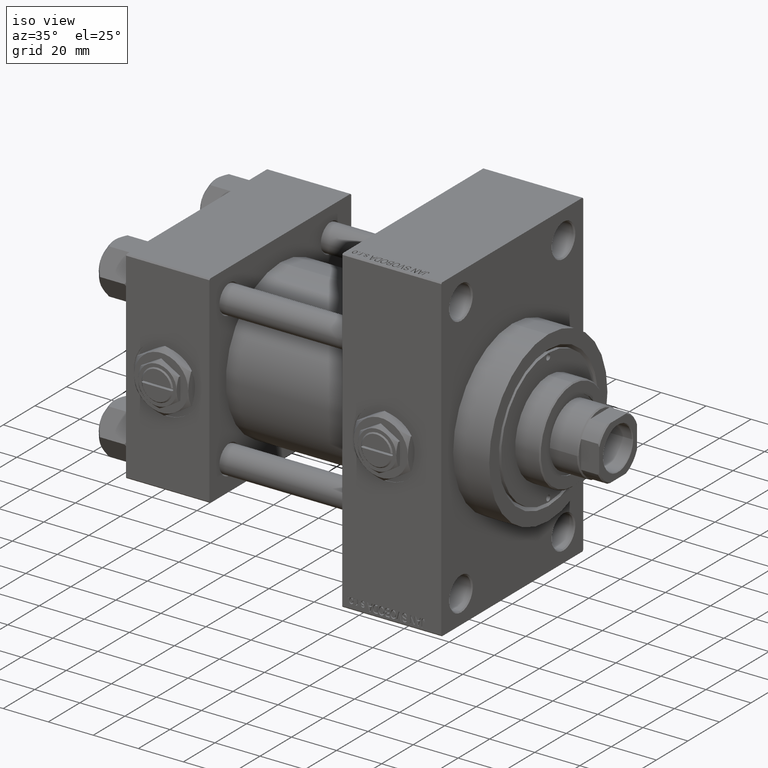
[diagram: clean part render]
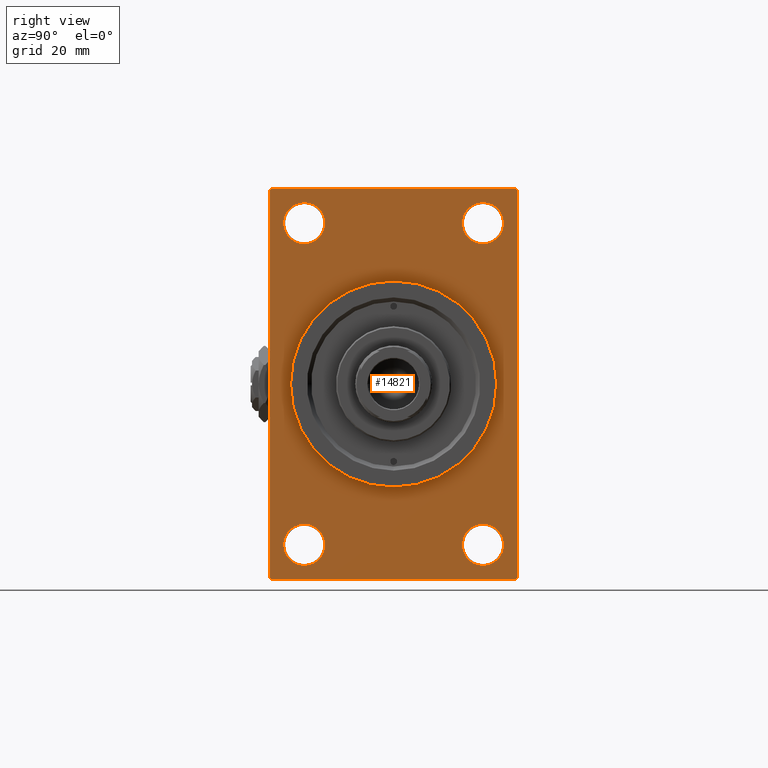
[diagram: tour spotlight — one face highlighted and labeled with its STEP entity id]
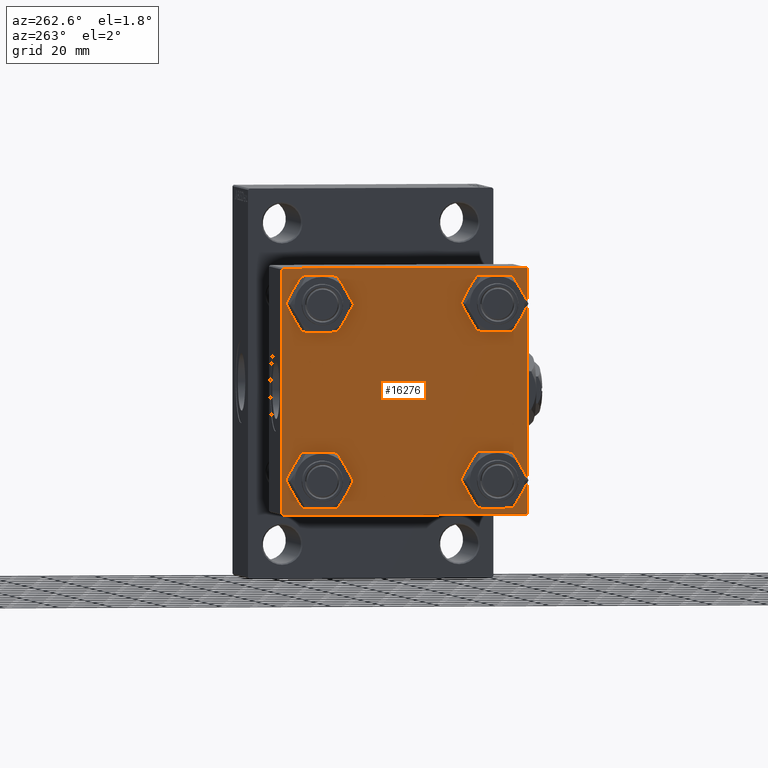
[diagram: tour spotlight — one face highlighted and labeled with its STEP entity id]
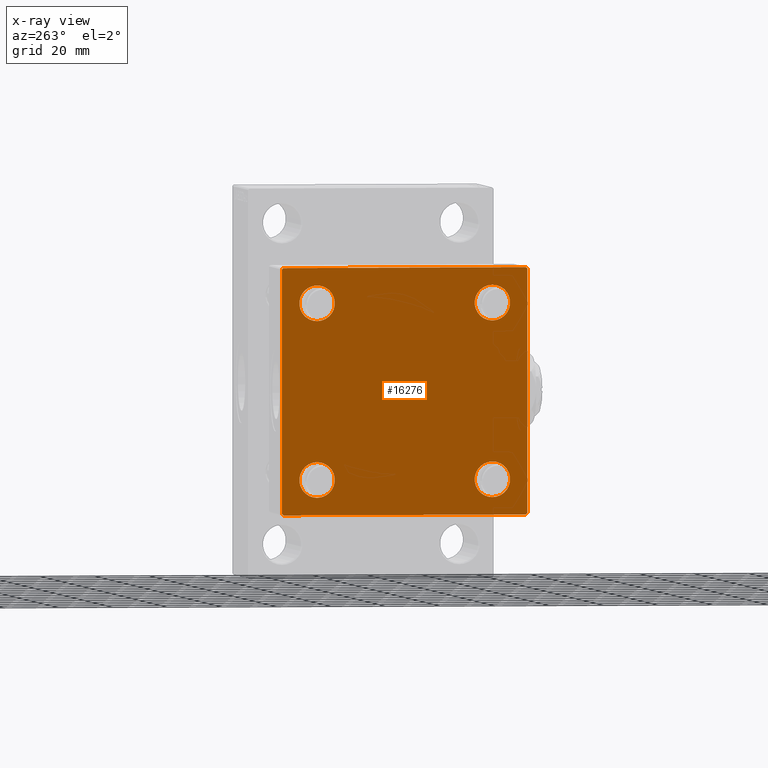
[diagram: x-ray of the same camera — body ghosted, this tour face saturated]
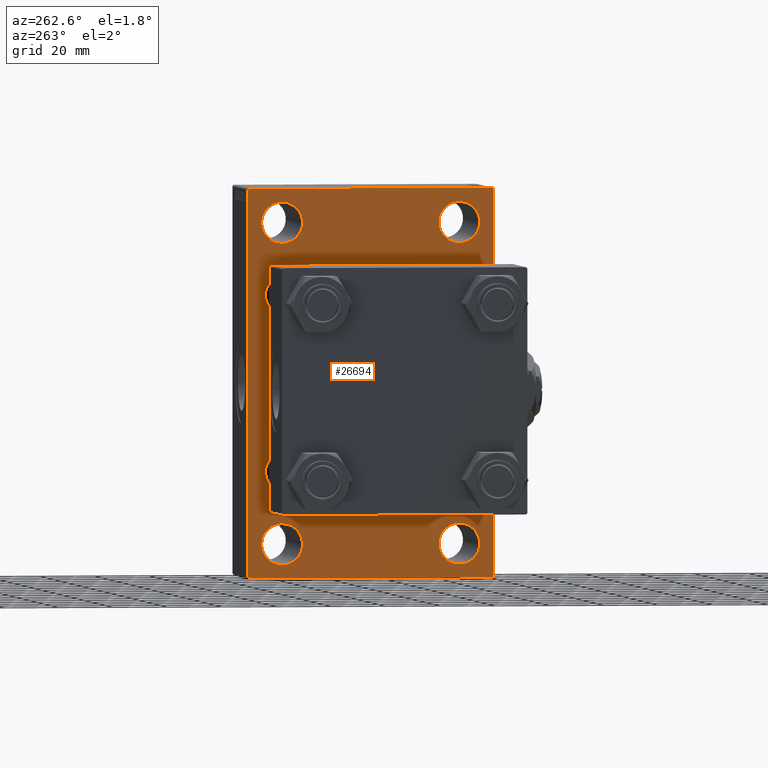
[diagram: tour spotlight — one face highlighted and labeled with its STEP entity id]
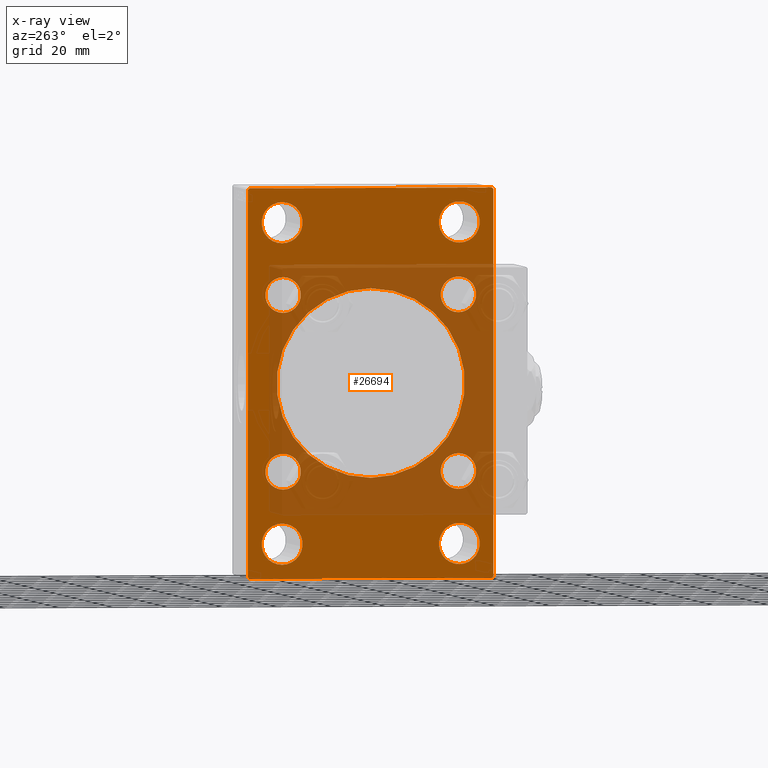
[diagram: x-ray of the same camera — body ghosted, this tour face saturated]
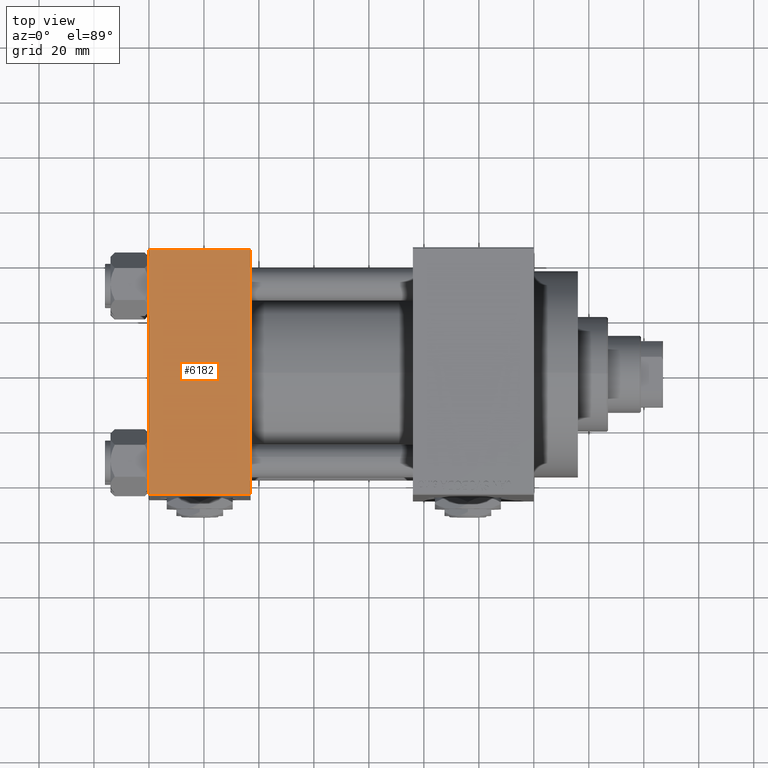
[diagram: tour spotlight — one face highlighted and labeled with its STEP entity id]
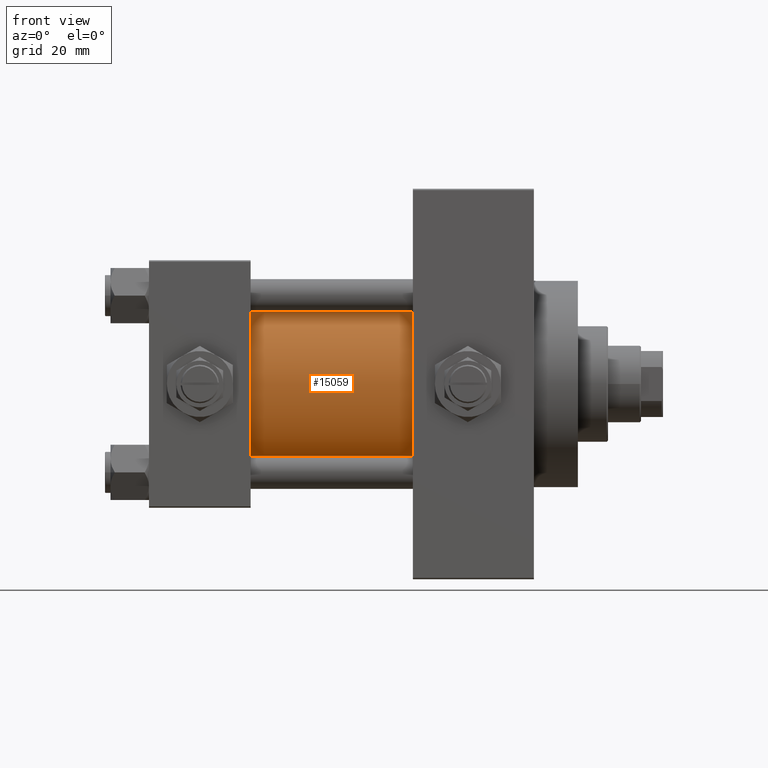
[diagram: tour spotlight — one face highlighted and labeled with its STEP entity id]
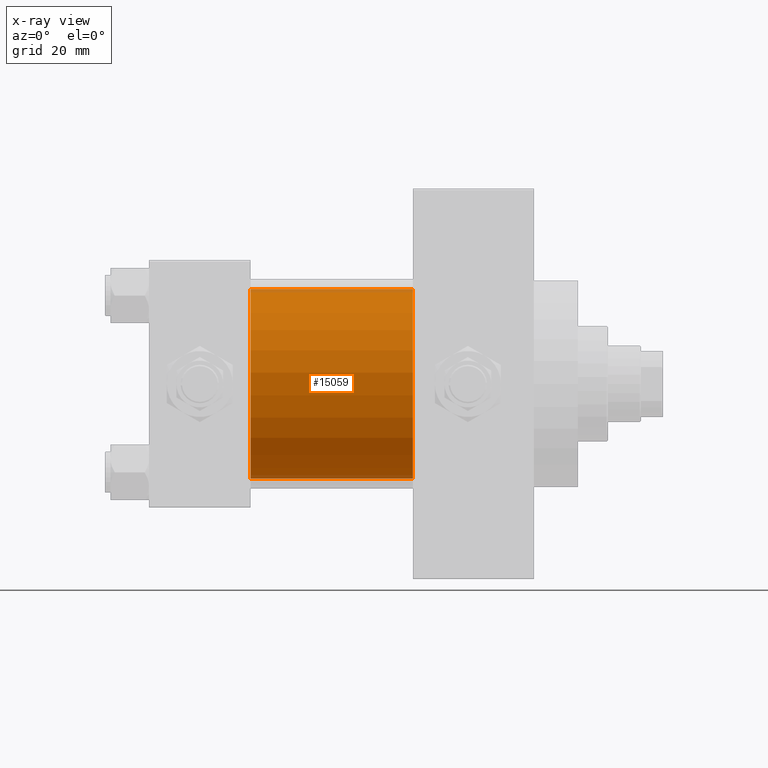
[diagram: x-ray of the same camera — body ghosted, this tour face saturated]
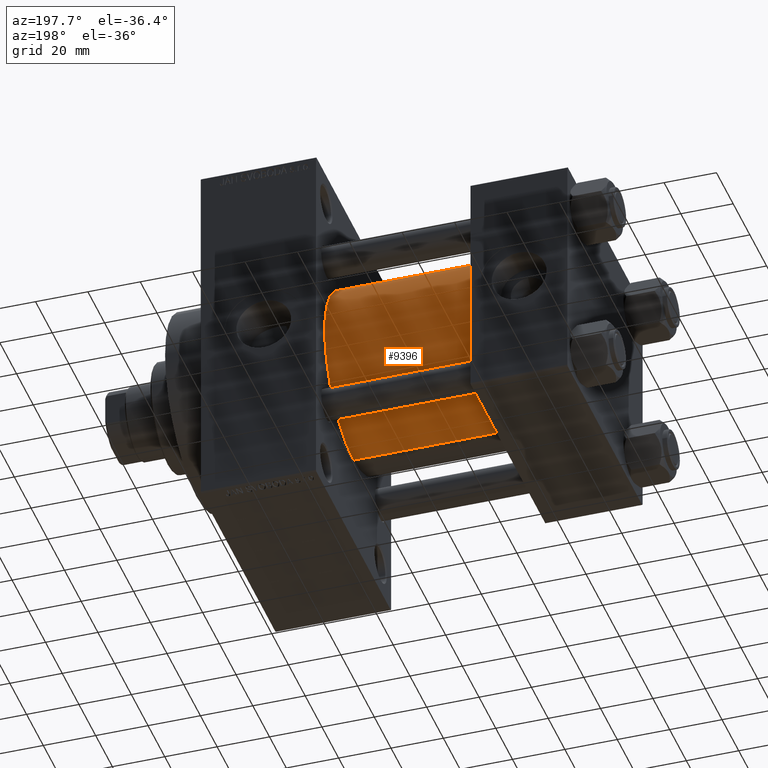
[diagram: tour spotlight — one face highlighted and labeled with its STEP entity id]
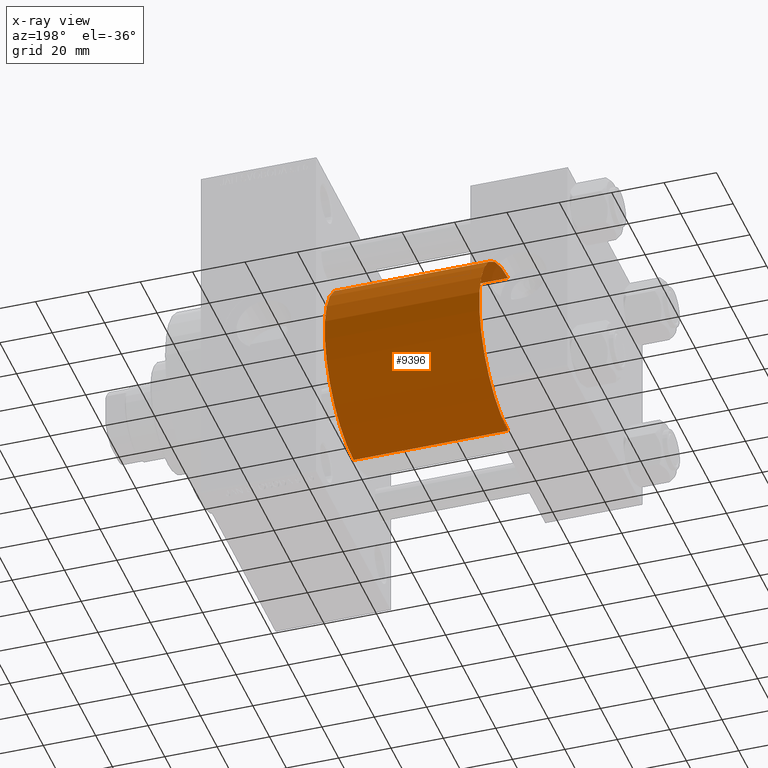
[diagram: x-ray of the same camera — body ghosted, this tour face saturated]
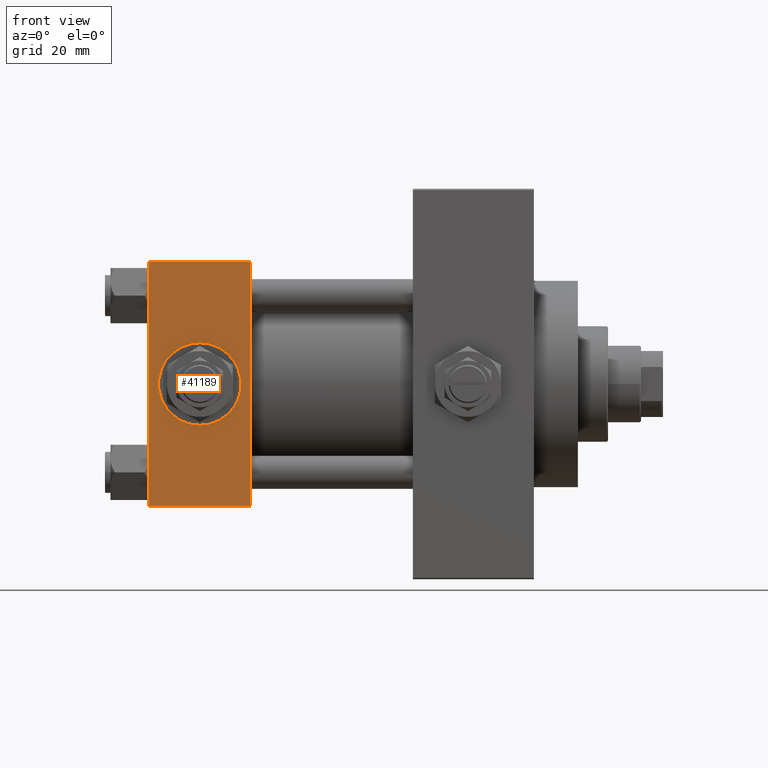
[diagram: tour spotlight — one face highlighted and labeled with its STEP entity id]
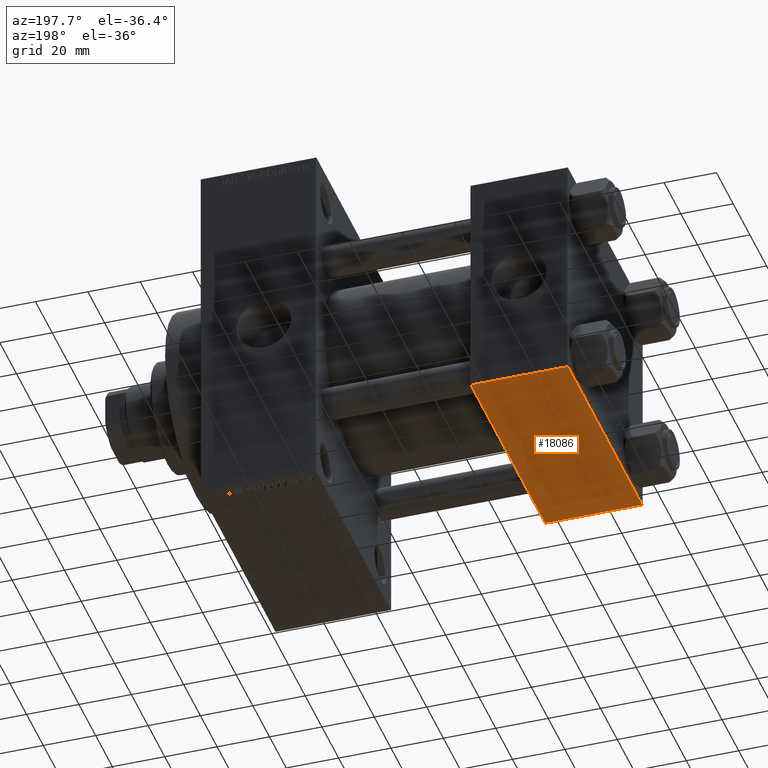
[diagram: tour spotlight — one face highlighted and labeled with its STEP entity id]
A machine part: a face-by-face anatomy tour. The part has 1213 B-rep faces; the first image is the clean iso view, then the 8 largest visible faces are spotlighted one at a time (largest first), each with its STEP entity span.

Face 1 — right view, entity #14821. In plain terms, the highlighted planar face has unit normal (-1, 0, 0).
Definition (entity closure, byte-faithful):
#443 = VECTOR ( 'NONE', #39348, 1000.000000000000000 ) ;
#715 = EDGE_CURVE ( 'NONE', #13454, #34005, #4859, .T. ) ;
#1080 = EDGE_CURVE ( 'NONE', #21348, #14776, #17635, .T. ) ;
#1218 = DIRECTION ( 'NONE',  ( 0.000000000000000000, 0.000000000000000000, -1.000000000000000000 ) ) ;
#1539 = DIRECTION ( 'NONE',  ( -1.000000000000000000, 0.000000000000000000, -0.000000000000000000 ) ) ;
#1638 = EDGE_CURVE ( 'NONE', #44916, #12211, #9671, .T. ) ;
#2032 = ORIENTED_EDGE ( 'NONE', *, *, #6139, .T. ) ;
#2265 = CARTESIAN_POINT ( 'NONE',  ( 140.0000000000000000, -44.49999999999994316, -71.00000000000000000 ) ) ;
#2298 = ORIENTED_EDGE ( 'NONE', *, *, #24604, .F. ) ;
#2491 = DIRECTION ( 'NONE',  ( -0.000000000000000000, 0.000000000000000000, 1.000000000000000000 ) ) ;
#2730 = CARTESIAN_POINT ( 'NONE',  ( 140.0000000000000000, 0.000000000000000000, 0.000000000000000000 ) ) ;
#2849 = EDGE_LOOP ( 'NONE', ( #22521, #41236 ) ) ;
#3245 = FACE_BOUND ( 'NONE', #49517, .T. ) ;
#3884 = EDGE_LOOP ( 'NONE', ( #31774, #2032, #2298, #30220, #44196, #15380, #39579, #32170 ) ) ;
#4859 = CIRCLE ( 'NONE', #16155, 7.500000000000034639 ) ;
#5020 = CARTESIAN_POINT ( 'NONE',  ( 140.0000000000000000, -44.99999999999997158, 70.99999999999998579 ) ) ;
#5173 = CARTESIAN_POINT ( 'NONE',  ( 140.0000000000000000, -32.50000000000000000, -58.49999999999999289 ) ) ;
#5478 = CARTESIAN_POINT ( 'NONE',  ( 140.0000000000000000, 32.50000000000000711, -58.50000000000000000 ) ) ;
#5659 = DIRECTION ( 'NONE',  ( -1.000000000000000000, 0.000000000000000000, -0.000000000000000000 ) ) ;
#5717 = CARTESIAN_POINT ( 'NONE',  ( 140.0000000000000000, -44.99999999999997158, 70.49999999999998579 ) ) ;
#6139 = EDGE_CURVE ( 'NONE', #49181, #44740, #45613, .T. ) ;
#6687 = DIRECTION ( 'NONE',  ( 0.000000000000000000, -1.000000000000000000, -1.541976423090495387E-16 ) ) ;
#7548 = CIRCLE ( 'NONE', #12368, 7.499999999999936939 ) ;
#7600 = CARTESIAN_POINT ( 'NONE',  ( 140.0000000000000000, -44.49999999999995026, 70.99999999999998579 ) ) ;
#8265 = EDGE_CURVE ( 'NONE', #30377, #45373, #24251, .T. ) ;
#8275 = DIRECTION ( 'NONE',  ( 0.000000000000000000, 0.000000000000000000, -1.000000000000000000 ) ) ;
#8922 = DIRECTION ( 'NONE',  ( 0.000000000000000000, 0.000000000000000000, 1.000000000000000000 ) ) ;
#9037 = CARTESIAN_POINT ( 'NONE',  ( 140.0000000000000000, -32.50000000000000000, 58.50000000000000711 ) ) ;
#9091 = CARTESIAN_POINT ( 'NONE',  ( 140.0000000000000000, -32.50000000000000000, -58.49999999999999289 ) ) ;
#9230 = DIRECTION ( 'NONE',  ( -1.000000000000000000, 0.000000000000000000, -0.000000000000000000 ) ) ;
#9463 = DIRECTION ( 'NONE',  ( 1.000000000000000000, 0.000000000000000000, 0.000000000000000000 ) ) ;
#9588 = DIRECTION ( 'NONE',  ( -1.000000000000000000, 0.000000000000000000, -0.000000000000000000 ) ) ;
#9671 = CIRCLE ( 'NONE', #44010, 7.499999999999936939 ) ;
#9819 = EDGE_CURVE ( 'NONE', #14776, #21348, #45925, .T. ) ;
#9980 = PLANE ( 'NONE',  #29954 ) ;
#9992 = EDGE_CURVE ( 'NONE', #34879, #15143, #29306, .T. ) ;
#10683 = CARTESIAN_POINT ( 'NONE',  ( 140.0000000000000000, 45.00000000000002132, 71.00000000000000000 ) ) ;
#11250 = AXIS2_PLACEMENT_3D ( 'NONE', #5173, #16686, #8922 ) ;
#11507 = ORIENTED_EDGE ( 'NONE', *, *, #1638, .T. ) ;
#11511 = CARTESIAN_POINT ( 'NONE',  ( 140.0000000000000000, 45.00000000000002132, 70.50000000000000000 ) ) ;
#11593 = VECTOR ( 'NONE', #19672, 999.9999999999998863 ) ;
#12211 = VERTEX_POINT ( 'NONE', #25690 ) ;
#12226 = CARTESIAN_POINT ( 'NONE',  ( 140.0000000000000000, -32.50000000000000000, -50.99999999999995737 ) ) ;
#12368 = AXIS2_PLACEMENT_3D ( 'NONE', #41287, #21016, #47805 ) ;
#12412 = CARTESIAN_POINT ( 'NONE',  ( 140.0000000000000000, 45.00000000000001421, -70.50000000000001421 ) ) ;
#13049 = CIRCLE ( 'NONE', #25809, 37.50000000000000711 ) ;
#13294 = CIRCLE ( 'NONE', #17188, 7.499999999999936939 ) ;
#13454 = VERTEX_POINT ( 'NONE', #26330 ) ;
#13729 = FACE_BOUND ( 'NONE', #31595, .T. ) ;
#14350 = VERTEX_POINT ( 'NONE', #7600 ) ;
#14734 = FACE_BOUND ( 'NONE', #2849, .T. ) ;
#14776 = VERTEX_POINT ( 'NONE', #16532 ) ;
#14821 = ADVANCED_FACE ( 'NONE', ( #13729, #3245, #14734, #29968, #21478, #25969 ), #9980, .F. ) ;
#15143 = VERTEX_POINT ( 'NONE', #21603 ) ;
#15380 = ORIENTED_EDGE ( 'NONE', *, *, #9992, .T. ) ;
#16042 = LINE ( 'NONE', #5020, #25177 ) ;
#16155 = AXIS2_PLACEMENT_3D ( 'NONE', #5478, #9230, #24943 ) ;
#16407 = AXIS2_PLACEMENT_3D ( 'NONE', #21387, #5659, #36645 ) ;
#16488 = CARTESIAN_POINT ( 'NONE',  ( 140.0000000000000000, 32.50000000000000711, 65.99999999999994316 ) ) ;
#16532 = CARTESIAN_POINT ( 'NONE',  ( 140.0000000000000000, -32.50000000000000000, -66.00000000000001421 ) ) ;
#16676 = EDGE_CURVE ( 'NONE', #45373, #30377, #13049, .T. ) ;
#16686 = DIRECTION ( 'NONE',  ( -1.000000000000000000, 0.000000000000000000, -0.000000000000000000 ) ) ;
#17188 = AXIS2_PLACEMENT_3D ( 'NONE', #40371, #28356, #33095 ) ;
#17221 = LINE ( 'NONE', #5717, #33151 ) ;
#17635 = CIRCLE ( 'NONE', #11250, 7.500000000000041744 ) ;
#17988 = DIRECTION ( 'NONE',  ( -1.000000000000000000, 0.000000000000000000, -0.000000000000000000 ) ) ;
#18245 = CARTESIAN_POINT ( 'NONE',  ( 140.0000000000000000, 0.000000000000000000, 0.000000000000000000 ) ) ;
#19011 = VERTEX_POINT ( 'NONE', #38442 ) ;
#19160 = EDGE_CURVE ( 'NONE', #24770, #36277, #29907, .T. ) ;
#19390 = EDGE_CURVE ( 'NONE', #36277, #24770, #7548, .T. ) ;
#19672 = DIRECTION ( 'NONE',  ( -0.000000000000000000, 0.7071067811865574537, 0.7071067811865376918 ) ) ;
#20859 = EDGE_CURVE ( 'NONE', #19011, #38628, #23898, .T. ) ;
#21016 = DIRECTION ( 'NONE',  ( -1.000000000000000000, 0.000000000000000000, -0.000000000000000000 ) ) ;
#21348 = VERTEX_POINT ( 'NONE', #12226 ) ;
#21387 = CARTESIAN_POINT ( 'NONE',  ( 140.0000000000000000, 32.50000000000000711, -58.50000000000000000 ) ) ;
#21427 = CARTESIAN_POINT ( 'NONE',  ( 140.0000000000000000, 45.00000000000001421, -70.50000000000001421 ) ) ;
#21478 = FACE_BOUND ( 'NONE', #27556, .T. ) ;
#21603 = CARTESIAN_POINT ( 'NONE',  ( 140.0000000000000000, 44.50000000000002132, 71.00000000000000000 ) ) ;
#22431 = LINE ( 'NONE', #10683, #37485 ) ;
#22521 = ORIENTED_EDGE ( 'NONE', *, *, #45811, .T. ) ;
#22560 = ORIENTED_EDGE ( 'NONE', *, *, #23425, .T. ) ;
#23001 = CARTESIAN_POINT ( 'NONE',  ( 140.0000000000000000, 32.50000000000000711, 58.50000000000000711 ) ) ;
#23425 = EDGE_CURVE ( 'NONE', #12211, #44916, #13294, .T. ) ;
#23743 = CARTESIAN_POINT ( 'NONE',  ( 140.0000000000000000, 32.50000000000000711, -66.00000000000002842 ) ) ;
#23898 = LINE ( 'NONE', #12412, #11593 ) ;
#24076 = LINE ( 'NONE', #46378, #443 ) ;
#24251 = CIRCLE ( 'NONE', #39443, 37.50000000000000711 ) ;
#24325 = AXIS2_PLACEMENT_3D ( 'NONE', #9091, #9588, #36096 ) ;
#24604 = EDGE_CURVE ( 'NONE', #19011, #44740, #24076, .T. ) ;
#24770 = VERTEX_POINT ( 'NONE', #41323 ) ;
#24936 = DIRECTION ( 'NONE',  ( -0.000000000000000000, -0.7071067811865426878, -0.7071067811865524577 ) ) ;
#24943 = DIRECTION ( 'NONE',  ( 0.000000000000000000, 0.000000000000000000, 1.000000000000000000 ) ) ;
#25177 = VECTOR ( 'NONE', #8275, 1000.000000000000000 ) ;
#25247 = CIRCLE ( 'NONE', #16407, 7.500000000000034639 ) ;
#25250 = EDGE_LOOP ( 'NONE', ( #22560, #11507 ) ) ;
#25690 = CARTESIAN_POINT ( 'NONE',  ( 140.0000000000000000, 32.50000000000000711, 51.00000000000007105 ) ) ;
#25809 = AXIS2_PLACEMENT_3D ( 'NONE', #28197, #9463, #1218 ) ;
#25969 = FACE_OUTER_BOUND ( 'NONE', #3884, .T. ) ;
#26330 = CARTESIAN_POINT ( 'NONE',  ( 140.0000000000000000, 32.50000000000000711, -50.99999999999996447 ) ) ;
#27544 = ORIENTED_EDGE ( 'NONE', *, *, #8265, .F. ) ;
#27556 = EDGE_LOOP ( 'NONE', ( #27544, #36596 ) ) ;
#28197 = CARTESIAN_POINT ( 'NONE',  ( 140.0000000000000000, 0.000000000000000000, 0.000000000000000000 ) ) ;
#28356 = DIRECTION ( 'NONE',  ( -1.000000000000000000, 0.000000000000000000, -0.000000000000000000 ) ) ;
#29306 = LINE ( 'NONE', #37824, #43522 ) ;
#29907 = CIRCLE ( 'NONE', #37100, 7.499999999999936939 ) ;
#29954 = AXIS2_PLACEMENT_3D ( 'NONE', #18245, #17988, #2491 ) ;
#29968 = FACE_BOUND ( 'NONE', #25250, .T. ) ;
#30089 = ORIENTED_EDGE ( 'NONE', *, *, #19390, .T. ) ;
#30220 = ORIENTED_EDGE ( 'NONE', *, *, #20859, .T. ) ;
#30365 = ORIENTED_EDGE ( 'NONE', *, *, #19160, .T. ) ;
#30377 = VERTEX_POINT ( 'NONE', #33618 ) ;
#30996 = DIRECTION ( 'NONE',  ( -1.000000000000000000, 0.000000000000000000, -0.000000000000000000 ) ) ;
#31595 = EDGE_LOOP ( 'NONE', ( #30089, #30365 ) ) ;
#31774 = ORIENTED_EDGE ( 'NONE', *, *, #42942, .T. ) ;
#31939 = ORIENTED_EDGE ( 'NONE', *, *, #9819, .T. ) ;
#32170 = ORIENTED_EDGE ( 'NONE', *, *, #45439, .T. ) ;
#32955 = EDGE_CURVE ( 'NONE', #34879, #38628, #42212, .T. ) ;
#33095 = DIRECTION ( 'NONE',  ( 0.000000000000000000, 0.000000000000000000, 1.000000000000000000 ) ) ;
#33151 = VECTOR ( 'NONE', #24936, 1000.000000000000000 ) ;
#33576 = CARTESIAN_POINT ( 'NONE',  ( 140.0000000000000000, -44.49999999999997158, -71.00000000000000000 ) ) ;
#33618 = CARTESIAN_POINT ( 'NONE',  ( 140.0000000000000000, 0.000000000000000000, 37.50000000000000711 ) ) ;
#33730 = ORIENTED_EDGE ( 'NONE', *, *, #1080, .T. ) ;
#34005 = VERTEX_POINT ( 'NONE', #23743 ) ;
#34569 = DIRECTION ( 'NONE',  ( 0.000000000000000000, 0.7071067811865573427, -0.7071067811865378028 ) ) ;
#34879 = VERTEX_POINT ( 'NONE', #11511 ) ;
#35230 = CARTESIAN_POINT ( 'NONE',  ( 140.0000000000000000, 4.592425496802575156E-15, -37.50000000000000711 ) ) ;
#36096 = DIRECTION ( 'NONE',  ( 0.000000000000000000, 0.000000000000000000, 1.000000000000000000 ) ) ;
#36277 = VERTEX_POINT ( 'NONE', #38220 ) ;
#36596 = ORIENTED_EDGE ( 'NONE', *, *, #16676, .F. ) ;
#36645 = DIRECTION ( 'NONE',  ( 0.000000000000000000, 0.000000000000000000, 1.000000000000000000 ) ) ;
#36872 = EDGE_CURVE ( 'NONE', #15143, #14350, #22431, .T. ) ;
#37100 = AXIS2_PLACEMENT_3D ( 'NONE', #9037, #1539, #47073 ) ;
#37485 = VECTOR ( 'NONE', #6687, 1000.000000000000000 ) ;
#37824 = CARTESIAN_POINT ( 'NONE',  ( 140.0000000000000000, 44.50000000000002132, 71.00000000000000000 ) ) ;
#38220 = CARTESIAN_POINT ( 'NONE',  ( 140.0000000000000000, -32.50000000000000000, 51.00000000000007105 ) ) ;
#38442 = CARTESIAN_POINT ( 'NONE',  ( 140.0000000000000000, 44.50000000000004263, -70.99999999999998579 ) ) ;
#38628 = VERTEX_POINT ( 'NONE', #21427 ) ;
#38696 = CARTESIAN_POINT ( 'NONE',  ( 140.0000000000000000, 45.00000000000002132, 71.00000000000000000 ) ) ;
#38764 = DIRECTION ( 'NONE',  ( 0.000000000000000000, 0.000000000000000000, 1.000000000000000000 ) ) ;
#39348 = DIRECTION ( 'NONE',  ( 0.000000000000000000, -1.000000000000000000, -1.541976423090495633E-16 ) ) ;
#39443 = AXIS2_PLACEMENT_3D ( 'NONE', #2730, #44761, #48262 ) ;
#39579 = ORIENTED_EDGE ( 'NONE', *, *, #36872, .T. ) ;
#40371 = CARTESIAN_POINT ( 'NONE',  ( 140.0000000000000000, 32.50000000000000711, 58.50000000000000711 ) ) ;
#40587 = DIRECTION ( 'NONE',  ( 0.000000000000000000, -0.7071067811865474617, 0.7071067811865474617 ) ) ;
#41164 = CARTESIAN_POINT ( 'NONE',  ( 140.0000000000000000, -44.99999999999997158, 70.49999999999998579 ) ) ;
#41236 = ORIENTED_EDGE ( 'NONE', *, *, #715, .T. ) ;
#41287 = CARTESIAN_POINT ( 'NONE',  ( 140.0000000000000000, -32.50000000000000000, 58.50000000000000711 ) ) ;
#41323 = CARTESIAN_POINT ( 'NONE',  ( 140.0000000000000000, -32.50000000000000000, 65.99999999999994316 ) ) ;
#41769 = VECTOR ( 'NONE', #34569, 1000.000000000000000 ) ;
#42212 = LINE ( 'NONE', #38696, #42295 ) ;
#42295 = VECTOR ( 'NONE', #42457, 1000.000000000000000 ) ;
#42457 = DIRECTION ( 'NONE',  ( 0.000000000000000000, -4.886545002751570165E-17, -1.000000000000000000 ) ) ;
#42651 = CARTESIAN_POINT ( 'NONE',  ( 140.0000000000000000, -44.99999999999997158, -70.50000000000000000 ) ) ;
#42942 = EDGE_CURVE ( 'NONE', #47121, #49181, #16042, .T. ) ;
#43522 = VECTOR ( 'NONE', #40587, 1000.000000000000114 ) ;
#44010 = AXIS2_PLACEMENT_3D ( 'NONE', #23001, #30996, #38764 ) ;
#44196 = ORIENTED_EDGE ( 'NONE', *, *, #32955, .F. ) ;
#44740 = VERTEX_POINT ( 'NONE', #2265 ) ;
#44761 = DIRECTION ( 'NONE',  ( 1.000000000000000000, 0.000000000000000000, 0.000000000000000000 ) ) ;
#44916 = VERTEX_POINT ( 'NONE', #16488 ) ;
#45373 = VERTEX_POINT ( 'NONE', #35230 ) ;
#45439 = EDGE_CURVE ( 'NONE', #14350, #47121, #17221, .T. ) ;
#45613 = LINE ( 'NONE', #33576, #41769 ) ;
#45811 = EDGE_CURVE ( 'NONE', #34005, #13454, #25247, .T. ) ;
#45925 = CIRCLE ( 'NONE', #24325, 7.500000000000041744 ) ;
#46378 = CARTESIAN_POINT ( 'NONE',  ( 140.0000000000000000, 45.00000000000001421, -70.99999999999998579 ) ) ;
#47073 = DIRECTION ( 'NONE',  ( 0.000000000000000000, 0.000000000000000000, 1.000000000000000000 ) ) ;
#47121 = VERTEX_POINT ( 'NONE', #41164 ) ;
#47805 = DIRECTION ( 'NONE',  ( 0.000000000000000000, 0.000000000000000000, 1.000000000000000000 ) ) ;
#48262 = DIRECTION ( 'NONE',  ( 0.000000000000000000, 0.000000000000000000, -1.000000000000000000 ) ) ;
#49181 = VERTEX_POINT ( 'NONE', #42651 ) ;
#49517 = EDGE_LOOP ( 'NONE', ( #31939, #33730 ) ) ;

Face 2 — auxiliary view, entity #16276. An x-ray twin of the same camera follows (body ghosted, this face saturated) — the face is partly hidden behind the body. In plain terms, the highlighted planar face has unit normal (-1, 0, 0).
Definition (entity closure, byte-faithful):
#18 = EDGE_CURVE ( 'NONE', #35682, #317, #47281, .T. ) ;
#314 = CARTESIAN_POINT ( 'NONE',  ( 0.000000000000000000, -32.14999999999997726, 38.65000000000003411 ) ) ;
#317 = VERTEX_POINT ( 'NONE', #314 ) ;
#1227 = CIRCLE ( 'NONE', #3629, 6.499999999999977796 ) ;
#1303 = VECTOR ( 'NONE', #28113, 1000.000000000000114 ) ;
#1843 = CARTESIAN_POINT ( 'NONE',  ( 0.000000000000000000, 32.14999999999999147, -32.15000000000000568 ) ) ;
#2143 = DIRECTION ( 'NONE',  ( -1.000000000000000000, 0.000000000000000000, -0.000000000000000000 ) ) ;
#2336 = DIRECTION ( 'NONE',  ( 0.000000000000000000, 0.000000000000000000, 1.000000000000000000 ) ) ;
#2408 = LINE ( 'NONE', #28882, #45223 ) ;
#2901 = ORIENTED_EDGE ( 'NONE', *, *, #9382, .T. ) ;
#3087 = DIRECTION ( 'NONE',  ( 0.000000000000000000, 7.709882115452476934E-17, -1.000000000000000000 ) ) ;
#3332 = LINE ( 'NONE', #31231, #25465 ) ;
#3418 = ORIENTED_EDGE ( 'NONE', *, *, #47155, .T. ) ;
#3589 = EDGE_LOOP ( 'NONE', ( #36049, #49480, #44702, #3418, #14183, #45785, #43329, #45042 ) ) ;
#3629 = AXIS2_PLACEMENT_3D ( 'NONE', #21670, #40703, #24687 ) ;
#4154 = AXIS2_PLACEMENT_3D ( 'NONE', #4271, #8759, #8516 ) ;
#4271 = CARTESIAN_POINT ( 'NONE',  ( 0.000000000000000000, -32.14999999999997726, 32.15000000000001279 ) ) ;
#4323 = CIRCLE ( 'NONE', #7487, 6.499999999999977796 ) ;
#4483 = LINE ( 'NONE', #19735, #14904 ) ;
#4701 = CARTESIAN_POINT ( 'NONE',  ( 0.000000000000000000, -32.14999999999997726, -38.64999999999999147 ) ) ;
#4879 = LINE ( 'NONE', #12377, #25209 ) ;
#5215 = CARTESIAN_POINT ( 'NONE',  ( 0.000000000000000000, 44.99999999999998579, 44.50000000000001421 ) ) ;
#5376 = CARTESIAN_POINT ( 'NONE',  ( 0.000000000000000000, 44.99999999999998579, -44.99999999999998579 ) ) ;
#5728 = VERTEX_POINT ( 'NONE', #11801 ) ;
#6491 = EDGE_CURVE ( 'NONE', #5728, #26142, #18604, .T. ) ;
#6586 = VERTEX_POINT ( 'NONE', #34635 ) ;
#7182 = EDGE_CURVE ( 'NONE', #30749, #28216, #34270, .T. ) ;
#7487 = AXIS2_PLACEMENT_3D ( 'NONE', #15534, #7787, #45810 ) ;
#7499 = ORIENTED_EDGE ( 'NONE', *, *, #6491, .T. ) ;
#7595 = AXIS2_PLACEMENT_3D ( 'NONE', #1843, #36830, #2336 ) ;
#7787 = DIRECTION ( 'NONE',  ( 1.000000000000000000, -0.000000000000000000, 0.000000000000000000 ) ) ;
#7918 = EDGE_CURVE ( 'NONE', #6586, #31608, #4323, .T. ) ;
#8516 = DIRECTION ( 'NONE',  ( 0.000000000000000000, 0.000000000000000000, 1.000000000000000000 ) ) ;
#8759 = DIRECTION ( 'NONE',  ( 1.000000000000000000, -0.000000000000000000, 0.000000000000000000 ) ) ;
#9121 = CARTESIAN_POINT ( 'NONE',  ( 0.000000000000000000, -32.14999999999997726, -25.65000000000003411 ) ) ;
#9127 = DIRECTION ( 'NONE',  ( 0.000000000000000000, 0.000000000000000000, 1.000000000000000000 ) ) ;
#9382 = EDGE_CURVE ( 'NONE', #26446, #13337, #37909, .T. ) ;
#9620 = CARTESIAN_POINT ( 'NONE',  ( 0.000000000000000000, 32.14999999999999147, 32.15000000000000568 ) ) ;
#9818 = ORIENTED_EDGE ( 'NONE', *, *, #18, .T. ) ;
#10383 = EDGE_CURVE ( 'NONE', #317, #35682, #42772, .T. ) ;
#11136 = ORIENTED_EDGE ( 'NONE', *, *, #20674, .T. ) ;
#11502 = CARTESIAN_POINT ( 'NONE',  ( 0.000000000000000000, -32.14999999999997726, 32.15000000000001279 ) ) ;
#11801 = CARTESIAN_POINT ( 'NONE',  ( 0.000000000000000000, 32.14999999999999147, 25.65000000000002700 ) ) ;
#12377 = CARTESIAN_POINT ( 'NONE',  ( 0.000000000000000000, -44.74999999999998579, -44.74999999999998579 ) ) ;
#12691 = DIRECTION ( 'NONE',  ( 1.000000000000000000, -0.000000000000000000, 0.000000000000000000 ) ) ;
#12697 = ORIENTED_EDGE ( 'NONE', *, *, #14074, .T. ) ;
#12794 = EDGE_LOOP ( 'NONE', ( #45541, #9818 ) ) ;
#13337 = VERTEX_POINT ( 'NONE', #9121 ) ;
#13629 = FACE_BOUND ( 'NONE', #18392, .T. ) ;
#14074 = EDGE_CURVE ( 'NONE', #31608, #6586, #29916, .T. ) ;
#14183 = ORIENTED_EDGE ( 'NONE', *, *, #32632, .F. ) ;
#14535 = CARTESIAN_POINT ( 'NONE',  ( 0.000000000000000000, 44.99999999999998579, 45.00000000000001421 ) ) ;
#14904 = VECTOR ( 'NONE', #46504, 1000.000000000000114 ) ;
#14935 = VECTOR ( 'NONE', #20373, 1000.000000000000000 ) ;
#15534 = CARTESIAN_POINT ( 'NONE',  ( 0.000000000000000000, 32.14999999999999147, -32.15000000000000568 ) ) ;
#16276 = ADVANCED_FACE ( 'NONE', ( #34303, #21128, #44147, #13629, #45836 ), #48166, .T. ) ;
#17129 = DIRECTION ( 'NONE',  ( 1.000000000000000000, -0.000000000000000000, 0.000000000000000000 ) ) ;
#18082 = CIRCLE ( 'NONE', #34070, 6.499999999999977796 ) ;
#18392 = EDGE_LOOP ( 'NONE', ( #35720, #7499 ) ) ;
#18604 = CIRCLE ( 'NONE', #26573, 6.499999999999977796 ) ;
#19735 = CARTESIAN_POINT ( 'NONE',  ( 0.000000000000000000, 44.74999999999998579, -44.74999999999998579 ) ) ;
#20373 = DIRECTION ( 'NONE',  ( 0.000000000000000000, -1.000000000000000000, -1.541976423090495633E-16 ) ) ;
#20671 = DIRECTION ( 'NONE',  ( 0.000000000000000000, -1.000000000000000000, -1.541976423090495387E-16 ) ) ;
#20674 = EDGE_CURVE ( 'NONE', #13337, #26446, #1227, .T. ) ;
#20758 = DIRECTION ( 'NONE',  ( -0.000000000000000000, 0.7071067811865425767, 0.7071067811865524577 ) ) ;
#21128 = FACE_BOUND ( 'NONE', #45903, .T. ) ;
#21255 = CARTESIAN_POINT ( 'NONE',  ( 0.000000000000000000, 32.14999999999999147, -25.65000000000002700 ) ) ;
#21343 = CARTESIAN_POINT ( 'NONE',  ( 0.000000000000000000, -44.49999999999995737, -45.00000000000000000 ) ) ;
#21459 = VERTEX_POINT ( 'NONE', #28918 ) ;
#21670 = CARTESIAN_POINT ( 'NONE',  ( 0.000000000000000000, -32.14999999999997726, -32.15000000000001279 ) ) ;
#22738 = DIRECTION ( 'NONE',  ( 0.000000000000000000, 0.000000000000000000, 1.000000000000000000 ) ) ;
#23409 = EDGE_CURVE ( 'NONE', #26142, #5728, #18082, .T. ) ;
#23745 = CARTESIAN_POINT ( 'NONE',  ( 0.000000000000000000, 32.14999999999999147, 38.64999999999999147 ) ) ;
#24200 = AXIS2_PLACEMENT_3D ( 'NONE', #36387, #2143, #28861 ) ;
#24562 = CARTESIAN_POINT ( 'NONE',  ( 0.000000000000000000, 44.99999999999998579, -44.49999999999995737 ) ) ;
#24687 = DIRECTION ( 'NONE',  ( 0.000000000000000000, 0.000000000000000000, 1.000000000000000000 ) ) ;
#24865 = EDGE_CURVE ( 'NONE', #31541, #36529, #47779, .T. ) ;
#25209 = VECTOR ( 'NONE', #46908, 1000.000000000000114 ) ;
#25465 = VECTOR ( 'NONE', #3087, 1000.000000000000000 ) ;
#25521 = LINE ( 'NONE', #39646, #1303 ) ;
#25921 = AXIS2_PLACEMENT_3D ( 'NONE', #40267, #32985, #29237 ) ;
#26142 = VERTEX_POINT ( 'NONE', #23745 ) ;
#26446 = VERTEX_POINT ( 'NONE', #4701 ) ;
#26573 = AXIS2_PLACEMENT_3D ( 'NONE', #35423, #12691, #32159 ) ;
#26885 = EDGE_CURVE ( 'NONE', #21459, #30749, #25521, .T. ) ;
#28113 = DIRECTION ( 'NONE',  ( 0.000000000000000000, 0.7071067811865474617, -0.7071067811865474617 ) ) ;
#28216 = VERTEX_POINT ( 'NONE', #24562 ) ;
#28384 = VERTEX_POINT ( 'NONE', #49083 ) ;
#28523 = CARTESIAN_POINT ( 'NONE',  ( 0.000000000000000000, -32.14999999999997726, 25.64999999999999147 ) ) ;
#28861 = DIRECTION ( 'NONE',  ( -0.000000000000000000, 0.000000000000000000, 1.000000000000000000 ) ) ;
#28882 = CARTESIAN_POINT ( 'NONE',  ( 0.000000000000000000, 44.99999999999998579, 45.00000000000001421 ) ) ;
#28918 = CARTESIAN_POINT ( 'NONE',  ( 0.000000000000000000, 44.49999999999998579, 45.00000000000001421 ) ) ;
#29098 = CARTESIAN_POINT ( 'NONE',  ( 0.000000000000000000, 44.49999999999998579, -44.99999999999998579 ) ) ;
#29237 = DIRECTION ( 'NONE',  ( 0.000000000000000000, 0.000000000000000000, 1.000000000000000000 ) ) ;
#29916 = CIRCLE ( 'NONE', #7595, 6.499999999999977796 ) ;
#30509 = DIRECTION ( 'NONE',  ( 0.000000000000000000, 0.000000000000000000, -1.000000000000000000 ) ) ;
#30749 = VERTEX_POINT ( 'NONE', #5215 ) ;
#31231 = CARTESIAN_POINT ( 'NONE',  ( 0.000000000000000000, -45.00000000000000711, 45.00000000000000000 ) ) ;
#31541 = VERTEX_POINT ( 'NONE', #35288 ) ;
#31608 = VERTEX_POINT ( 'NONE', #21255 ) ;
#32159 = DIRECTION ( 'NONE',  ( 0.000000000000000000, 0.000000000000000000, 1.000000000000000000 ) ) ;
#32632 = EDGE_CURVE ( 'NONE', #31541, #28384, #3332, .T. ) ;
#32732 = CARTESIAN_POINT ( 'NONE',  ( -0.000000000000000000, -44.75000000000029843, 44.74999999999967315 ) ) ;
#32985 = DIRECTION ( 'NONE',  ( 1.000000000000000000, -0.000000000000000000, 0.000000000000000000 ) ) ;
#34070 = AXIS2_PLACEMENT_3D ( 'NONE', #9620, #17129, #9127 ) ;
#34270 = LINE ( 'NONE', #14535, #37804 ) ;
#34303 = FACE_BOUND ( 'NONE', #12794, .T. ) ;
#34635 = CARTESIAN_POINT ( 'NONE',  ( 0.000000000000000000, 32.14999999999999147, -38.64999999999998437 ) ) ;
#35288 = CARTESIAN_POINT ( 'NONE',  ( 0.000000000000000000, -45.00000000000000711, 44.49999999999997158 ) ) ;
#35423 = CARTESIAN_POINT ( 'NONE',  ( 0.000000000000000000, 32.14999999999999147, 32.15000000000000568 ) ) ;
#35682 = VERTEX_POINT ( 'NONE', #28523 ) ;
#35720 = ORIENTED_EDGE ( 'NONE', *, *, #23409, .T. ) ;
#36049 = ORIENTED_EDGE ( 'NONE', *, *, #7182, .T. ) ;
#36122 = CARTESIAN_POINT ( 'NONE',  ( 0.000000000000000000, -44.49999999999995737, 45.00000000000000000 ) ) ;
#36387 = CARTESIAN_POINT ( 'NONE',  ( 0.000000000000000000, 0.000000000000000000, 0.000000000000000000 ) ) ;
#36529 = VERTEX_POINT ( 'NONE', #36122 ) ;
#36830 = DIRECTION ( 'NONE',  ( 1.000000000000000000, -0.000000000000000000, 0.000000000000000000 ) ) ;
#37804 = VECTOR ( 'NONE', #30509, 1000.000000000000000 ) ;
#37909 = CIRCLE ( 'NONE', #25921, 6.499999999999977796 ) ;
#39646 = CARTESIAN_POINT ( 'NONE',  ( 0.000000000000000000, 44.74999999999999289, 44.74999999999999289 ) ) ;
#40267 = CARTESIAN_POINT ( 'NONE',  ( 0.000000000000000000, -32.14999999999997726, -32.15000000000001279 ) ) ;
#40703 = DIRECTION ( 'NONE',  ( 1.000000000000000000, -0.000000000000000000, 0.000000000000000000 ) ) ;
#42772 = CIRCLE ( 'NONE', #46770, 6.500000000000019540 ) ;
#43303 = VERTEX_POINT ( 'NONE', #29098 ) ;
#43329 = ORIENTED_EDGE ( 'NONE', *, *, #46997, .F. ) ;
#44147 = FACE_BOUND ( 'NONE', #46845, .T. ) ;
#44275 = EDGE_CURVE ( 'NONE', #28216, #43303, #4483, .T. ) ;
#44702 = ORIENTED_EDGE ( 'NONE', *, *, #49222, .T. ) ;
#44946 = ORIENTED_EDGE ( 'NONE', *, *, #7918, .T. ) ;
#45042 = ORIENTED_EDGE ( 'NONE', *, *, #26885, .T. ) ;
#45223 = VECTOR ( 'NONE', #20671, 1000.000000000000000 ) ;
#45541 = ORIENTED_EDGE ( 'NONE', *, *, #10383, .T. ) ;
#45785 = ORIENTED_EDGE ( 'NONE', *, *, #24865, .T. ) ;
#45810 = DIRECTION ( 'NONE',  ( 0.000000000000000000, 0.000000000000000000, 1.000000000000000000 ) ) ;
#45836 = FACE_OUTER_BOUND ( 'NONE', #3589, .T. ) ;
#45903 = EDGE_LOOP ( 'NONE', ( #11136, #2901 ) ) ;
#46032 = DIRECTION ( 'NONE',  ( 1.000000000000000000, -0.000000000000000000, 0.000000000000000000 ) ) ;
#46504 = DIRECTION ( 'NONE',  ( -0.000000000000000000, -0.7071067811865474617, -0.7071067811865474617 ) ) ;
#46748 = VECTOR ( 'NONE', #20758, 1000.000000000000114 ) ;
#46770 = AXIS2_PLACEMENT_3D ( 'NONE', #11502, #46032, #22738 ) ;
#46845 = EDGE_LOOP ( 'NONE', ( #12697, #44946 ) ) ;
#46908 = DIRECTION ( 'NONE',  ( 0.000000000000000000, -0.7071067811865474617, 0.7071067811865474617 ) ) ;
#46997 = EDGE_CURVE ( 'NONE', #21459, #36529, #2408, .T. ) ;
#47155 = EDGE_CURVE ( 'NONE', #47194, #28384, #4879, .T. ) ;
#47194 = VERTEX_POINT ( 'NONE', #21343 ) ;
#47281 = CIRCLE ( 'NONE', #4154, 6.500000000000019540 ) ;
#47779 = LINE ( 'NONE', #32732, #46748 ) ;
#48137 = LINE ( 'NONE', #5376, #14935 ) ;
#48166 = PLANE ( 'NONE',  #24200 ) ;
#49083 = CARTESIAN_POINT ( 'NONE',  ( 0.000000000000000000, -45.00000000000000000, -44.49999999999995737 ) ) ;
#49222 = EDGE_CURVE ( 'NONE', #43303, #47194, #48137, .T. ) ;
#49480 = ORIENTED_EDGE ( 'NONE', *, *, #44275, .T. ) ;

Face 3 — auxiliary view, entity #26694. An x-ray twin of the same camera follows (body ghosted, this face saturated) — the face is partly hidden behind the body. In plain terms, the highlighted planar face has unit normal (-1, 0, 0).
Definition (entity closure, byte-faithful):
#315 = CARTESIAN_POINT ( 'NONE',  ( 96.00000000000000000, -32.50000000000000000, 51.00000000000002842 ) ) ;
#328 = ORIENTED_EDGE ( 'NONE', *, *, #17246, .T. ) ;
#576 = DIRECTION ( 'NONE',  ( 0.000000000000000000, 0.000000000000000000, 1.000000000000000000 ) ) ;
#581 = CARTESIAN_POINT ( 'NONE',  ( 96.00000000000000000, -2.602085213965210642E-15, 34.50000000000000000 ) ) ;
#891 = FACE_BOUND ( 'NONE', #35670, .T. ) ;
#935 = CARTESIAN_POINT ( 'NONE',  ( 96.00000000000000000, 32.14999999999999147, -25.64999999999999858 ) ) ;
#1230 = EDGE_CURVE ( 'NONE', #13063, #11700, #29631, .T. ) ;
#1257 = DIRECTION ( 'NONE',  ( 0.000000000000000000, 0.000000000000000000, 1.000000000000000000 ) ) ;
#1418 = LINE ( 'NONE', #16924, #31629 ) ;
#1593 = CARTESIAN_POINT ( 'NONE',  ( 96.00000000000000000, 57.74999999999938893, -57.75000000000100187 ) ) ;
#1824 = EDGE_CURVE ( 'NONE', #26134, #5227, #4118, .T. ) ;
#1976 = CARTESIAN_POINT ( 'NONE',  ( 96.00000000000000000, 32.50000000000000711, -58.50000000000000000 ) ) ;
#2316 = CARTESIAN_POINT ( 'NONE',  ( 96.00000000000000000, -44.49999999999994316, -71.00000000000000000 ) ) ;
#2372 = EDGE_CURVE ( 'NONE', #12433, #14596, #41673, .T. ) ;
#2441 = DIRECTION ( 'NONE',  ( 0.000000000000000000, 0.000000000000000000, 1.000000000000000000 ) ) ;
#2470 = ORIENTED_EDGE ( 'NONE', *, *, #44555, .T. ) ;
#2530 = AXIS2_PLACEMENT_3D ( 'NONE', #12524, #4770, #1257 ) ;
#2595 = ORIENTED_EDGE ( 'NONE', *, *, #2372, .T. ) ;
#2843 = CARTESIAN_POINT ( 'NONE',  ( 96.00000000000000000, -57.75000000000028422, 57.74999999999948841 ) ) ;
#2944 = EDGE_CURVE ( 'NONE', #14596, #12433, #16116, .T. ) ;
#3263 = AXIS2_PLACEMENT_3D ( 'NONE', #3787, #7523, #19277 ) ;
#3295 = AXIS2_PLACEMENT_3D ( 'NONE', #1976, #28706, #43989 ) ;
#3787 = CARTESIAN_POINT ( 'NONE',  ( 96.00000000000000000, -32.50000000000000000, -58.49999999999999289 ) ) ;
#3991 = VERTEX_POINT ( 'NONE', #10972 ) ;
#4118 = CIRCLE ( 'NONE', #3295, 7.500000000000007105 ) ;
#4152 = FACE_BOUND ( 'NONE', #46400, .T. ) ;
#4224 = ORIENTED_EDGE ( 'NONE', *, *, #5499, .T. ) ;
#4539 = DIRECTION ( 'NONE',  ( 1.000000000000000000, -0.000000000000000000, 0.000000000000000000 ) ) ;
#4770 = DIRECTION ( 'NONE',  ( 1.000000000000000000, -0.000000000000000000, 0.000000000000000000 ) ) ;
#5079 = CARTESIAN_POINT ( 'NONE',  ( 96.00000000000000000, -32.50000000000000000, 58.50000000000000711 ) ) ;
#5227 = VERTEX_POINT ( 'NONE', #49451 ) ;
#5499 = EDGE_CURVE ( 'NONE', #48125, #48555, #48964, .T. ) ;
#5859 = EDGE_CURVE ( 'NONE', #22819, #11700, #40751, .T. ) ;
#5966 = VECTOR ( 'NONE', #28985, 1000.000000000000000 ) ;
#5988 = EDGE_CURVE ( 'NONE', #13063, #12613, #44609, .T. ) ;
#6503 = VERTEX_POINT ( 'NONE', #43696 ) ;
#6628 = VECTOR ( 'NONE', #43772, 1000.000000000000000 ) ;
#6863 = DIRECTION ( 'NONE',  ( 0.000000000000000000, 0.000000000000000000, 1.000000000000000000 ) ) ;
#6896 = DIRECTION ( 'NONE',  ( 0.000000000000000000, 0.000000000000000000, -1.000000000000000000 ) ) ;
#7523 = DIRECTION ( 'NONE',  ( 1.000000000000000000, -0.000000000000000000, 0.000000000000000000 ) ) ;
#7651 = DIRECTION ( 'NONE',  ( -1.000000000000000000, 0.000000000000000000, -0.000000000000000000 ) ) ;
#8083 = ORIENTED_EDGE ( 'NONE', *, *, #1824, .T. ) ;
#8567 = ORIENTED_EDGE ( 'NONE', *, *, #1230, .F. ) ;
#8571 = EDGE_LOOP ( 'NONE', ( #2595, #9200 ) ) ;
#8637 = DIRECTION ( 'NONE',  ( 1.000000000000000000, -0.000000000000000000, 0.000000000000000000 ) ) ;
#8785 = DIRECTION ( 'NONE',  ( 0.000000000000000000, -1.000000000000000000, -1.541976423090495633E-16 ) ) ;
#8814 = CARTESIAN_POINT ( 'NONE',  ( 96.00000000000000000, -32.14999999999997726, -38.65000000000001990 ) ) ;
#8851 = VECTOR ( 'NONE', #6896, 1000.000000000000000 ) ;
#9200 = ORIENTED_EDGE ( 'NONE', *, *, #2944, .T. ) ;
#9223 = CARTESIAN_POINT ( 'NONE',  ( 96.00000000000000000, -32.50000000000000000, -65.99999999999997158 ) ) ;
#9339 = EDGE_CURVE ( 'NONE', #34617, #33235, #32276, .T. ) ;
#10045 = CARTESIAN_POINT ( 'NONE',  ( 96.00000000000000000, -32.14999999999997726, 25.65000000000000213 ) ) ;
#10497 = CARTESIAN_POINT ( 'NONE',  ( 96.00000000000000000, 57.75000000000000000, 57.75000000000000000 ) ) ;
#10728 = AXIS2_PLACEMENT_3D ( 'NONE', #25983, #36995, #32744 ) ;
#10768 = CARTESIAN_POINT ( 'NONE',  ( 96.00000000000000000, 32.14999999999999147, -38.65000000000001279 ) ) ;
#10972 = CARTESIAN_POINT ( 'NONE',  ( 96.00000000000000000, 32.14999999999999147, 38.65000000000001279 ) ) ;
#11635 = CIRCLE ( 'NONE', #39595, 7.499999999999978684 ) ;
#11654 = FACE_BOUND ( 'NONE', #29953, .T. ) ;
#11700 = VERTEX_POINT ( 'NONE', #12800 ) ;
#12165 = DIRECTION ( 'NONE',  ( 1.000000000000000000, -0.000000000000000000, 0.000000000000000000 ) ) ;
#12433 = VERTEX_POINT ( 'NONE', #35547 ) ;
#12470 = VECTOR ( 'NONE', #36093, 999.9999999999998863 ) ;
#12489 = EDGE_CURVE ( 'NONE', #24548, #13892, #11635, .T. ) ;
#12524 = CARTESIAN_POINT ( 'NONE',  ( 96.00000000000000000, -32.14999999999997726, 32.15000000000001279 ) ) ;
#12613 = VERTEX_POINT ( 'NONE', #29506 ) ;
#12791 = CARTESIAN_POINT ( 'NONE',  ( 96.00000000000000000, 45.00000000000001421, -70.99999999999998579 ) ) ;
#12800 = CARTESIAN_POINT ( 'NONE',  ( 96.00000000000000000, -44.99999999999997158, -70.50000000000000000 ) ) ;
#13063 = VERTEX_POINT ( 'NONE', #20680 ) ;
#13290 = CIRCLE ( 'NONE', #46875, 7.499999999999978684 ) ;
#13309 = EDGE_LOOP ( 'NONE', ( #18838, #31049 ) ) ;
#13348 = EDGE_LOOP ( 'NONE', ( #38812, #42210 ) ) ;
#13728 = CARTESIAN_POINT ( 'NONE',  ( 96.00000000000000000, -57.74999999999937472, -57.75000000000096634 ) ) ;
#13892 = VERTEX_POINT ( 'NONE', #48461 ) ;
#14584 = EDGE_CURVE ( 'NONE', #36474, #22248, #15632, .T. ) ;
#14596 = VERTEX_POINT ( 'NONE', #10045 ) ;
#14601 = AXIS2_PLACEMENT_3D ( 'NONE', #46137, #23577, #27088 ) ;
#14866 = CIRCLE ( 'NONE', #30800, 6.499999999999999112 ) ;
#14899 = CARTESIAN_POINT ( 'NONE',  ( 96.00000000000000000, 1.622946243093158675E-15, -34.50000000000000000 ) ) ;
#15011 = CIRCLE ( 'NONE', #48551, 6.500000000000005329 ) ;
#15103 = VERTEX_POINT ( 'NONE', #43900 ) ;
#15632 = CIRCLE ( 'NONE', #27566, 7.499999999999985789 ) ;
#15679 = DIRECTION ( 'NONE',  ( 0.000000000000000000, 0.000000000000000000, 1.000000000000000000 ) ) ;
#16116 = CIRCLE ( 'NONE', #2530, 6.500000000000005329 ) ;
#16542 = EDGE_CURVE ( 'NONE', #38152, #6503, #48547, .T. ) ;
#16751 = ORIENTED_EDGE ( 'NONE', *, *, #41688, .T. ) ;
#16835 = DIRECTION ( 'NONE',  ( 0.000000000000000000, 0.000000000000000000, 1.000000000000000000 ) ) ;
#16924 = CARTESIAN_POINT ( 'NONE',  ( 96.00000000000000000, 45.00000000000002132, 71.00000000000000000 ) ) ;
#16928 = CIRCLE ( 'NONE', #31257, 6.499999999999999112 ) ;
#17246 = EDGE_CURVE ( 'NONE', #48555, #48125, #23450, .T. ) ;
#17418 = CARTESIAN_POINT ( 'NONE',  ( 96.00000000000000000, -44.99999999999997158, 70.99999999999998579 ) ) ;
#18434 = CIRCLE ( 'NONE', #3263, 7.499999999999985789 ) ;
#18470 = DIRECTION ( 'NONE',  ( 1.000000000000000000, -0.000000000000000000, 0.000000000000000000 ) ) ;
#18802 = DIRECTION ( 'NONE',  ( 0.000000000000000000, 0.000000000000000000, 1.000000000000000000 ) ) ;
#18838 = ORIENTED_EDGE ( 'NONE', *, *, #35126, .T. ) ;
#18874 = CARTESIAN_POINT ( 'NONE',  ( 96.00000000000000000, 44.50000000000002132, 71.00000000000000000 ) ) ;
#18916 = FACE_BOUND ( 'NONE', #13309, .T. ) ;
#19277 = DIRECTION ( 'NONE',  ( 0.000000000000000000, 0.000000000000000000, 1.000000000000000000 ) ) ;
#19388 = EDGE_CURVE ( 'NONE', #6503, #22265, #25999, .T. ) ;
#19399 = DIRECTION ( 'NONE',  ( -0.000000000000000000, 0.000000000000000000, 1.000000000000000000 ) ) ;
#20010 = CARTESIAN_POINT ( 'NONE',  ( 96.00000000000000000, 32.50000000000000711, -66.00000000000000000 ) ) ;
#20530 = DIRECTION ( 'NONE',  ( 0.000000000000000000, 0.000000000000000000, 1.000000000000000000 ) ) ;
#20680 = CARTESIAN_POINT ( 'NONE',  ( 96.00000000000000000, -44.99999999999997158, 70.49999999999998579 ) ) ;
#21092 = EDGE_CURVE ( 'NONE', #26613, #22819, #36025, .T. ) ;
#21305 = AXIS2_PLACEMENT_3D ( 'NONE', #35199, #42232, #42721 ) ;
#21938 = ORIENTED_EDGE ( 'NONE', *, *, #5988, .T. ) ;
#21942 = DIRECTION ( 'NONE',  ( 0.000000000000000000, 0.000000000000000000, 1.000000000000000000 ) ) ;
#22248 = VERTEX_POINT ( 'NONE', #9223 ) ;
#22265 = VERTEX_POINT ( 'NONE', #31461 ) ;
#22457 = EDGE_CURVE ( 'NONE', #38152, #12613, #1418, .T. ) ;
#22488 = DIRECTION ( 'NONE',  ( 0.000000000000000000, 0.7071067811865474617, -0.7071067811865474617 ) ) ;
#22534 = CARTESIAN_POINT ( 'NONE',  ( 96.00000000000000000, -32.50000000000000000, -58.49999999999999289 ) ) ;
#22579 = VECTOR ( 'NONE', #48627, 1000.000000000000000 ) ;
#22819 = VERTEX_POINT ( 'NONE', #2316 ) ;
#23152 = CIRCLE ( 'NONE', #29539, 6.500000000000005329 ) ;
#23450 = CIRCLE ( 'NONE', #47432, 34.50000000000000000 ) ;
#23577 = DIRECTION ( 'NONE',  ( 1.000000000000000000, 0.000000000000000000, 0.000000000000000000 ) ) ;
#23829 = CARTESIAN_POINT ( 'NONE',  ( 96.00000000000000000, 32.50000000000000711, 51.00000000000002842 ) ) ;
#23871 = DIRECTION ( 'NONE',  ( 0.000000000000000000, 0.000000000000000000, 1.000000000000000000 ) ) ;
#23875 = PLANE ( 'NONE',  #39651 ) ;
#24010 = CARTESIAN_POINT ( 'NONE',  ( 96.00000000000000000, 32.14999999999999147, 32.15000000000000568 ) ) ;
#24155 = DIRECTION ( 'NONE',  ( 0.000000000000000000, -1.000000000000000000, -1.541976423090495387E-16 ) ) ;
#24548 = VERTEX_POINT ( 'NONE', #23829 ) ;
#24646 = ORIENTED_EDGE ( 'NONE', *, *, #26415, .T. ) ;
#24665 = CARTESIAN_POINT ( 'NONE',  ( 96.00000000000000000, 44.50000000000004263, -70.99999999999998579 ) ) ;
#25949 = CARTESIAN_POINT ( 'NONE',  ( 96.00000000000000000, 32.50000000000000711, 58.50000000000000711 ) ) ;
#25983 = CARTESIAN_POINT ( 'NONE',  ( 96.00000000000000000, -32.50000000000000000, 58.50000000000000711 ) ) ;
#25999 = LINE ( 'NONE', #48807, #5966 ) ;
#26134 = VERTEX_POINT ( 'NONE', #20010 ) ;
#26174 = ORIENTED_EDGE ( 'NONE', *, *, #12489, .T. ) ;
#26415 = EDGE_CURVE ( 'NONE', #13892, #24548, #13290, .T. ) ;
#26433 = CIRCLE ( 'NONE', #46433, 7.500000000000007105 ) ;
#26613 = VERTEX_POINT ( 'NONE', #24665 ) ;
#26694 = ADVANCED_FACE ( 'NONE', ( #45927, #11654, #38907, #891, #26889, #41916, #18916, #38410, #4152, #34643 ), #23875, .T. ) ;
#26889 = FACE_BOUND ( 'NONE', #8571, .T. ) ;
#27088 = DIRECTION ( 'NONE',  ( 0.000000000000000000, 0.000000000000000000, -1.000000000000000000 ) ) ;
#27309 = CARTESIAN_POINT ( 'NONE',  ( 96.00000000000000000, 32.14999999999999147, 25.65000000000000213 ) ) ;
#27520 = EDGE_CURVE ( 'NONE', #33872, #46894, #44464, .T. ) ;
#27566 = AXIS2_PLACEMENT_3D ( 'NONE', #22534, #41062, #18802 ) ;
#27835 = LINE ( 'NONE', #1593, #12470 ) ;
#28035 = CARTESIAN_POINT ( 'NONE',  ( 96.00000000000000000, 32.50000000000000711, 58.50000000000000711 ) ) ;
#28092 = ORIENTED_EDGE ( 'NONE', *, *, #38880, .T. ) ;
#28224 = EDGE_CURVE ( 'NONE', #33235, #34617, #31731, .T. ) ;
#28254 = CARTESIAN_POINT ( 'NONE',  ( 96.00000000000000000, 32.14999999999999147, 32.15000000000000568 ) ) ;
#28293 = ORIENTED_EDGE ( 'NONE', *, *, #29587, .T. ) ;
#28680 = DIRECTION ( 'NONE',  ( 1.000000000000000000, -0.000000000000000000, 0.000000000000000000 ) ) ;
#28706 = DIRECTION ( 'NONE',  ( 1.000000000000000000, -0.000000000000000000, 0.000000000000000000 ) ) ;
#28787 = DIRECTION ( 'NONE',  ( 1.000000000000000000, -0.000000000000000000, 0.000000000000000000 ) ) ;
#28941 = EDGE_LOOP ( 'NONE', ( #30211, #34487 ) ) ;
#28985 = DIRECTION ( 'NONE',  ( 0.000000000000000000, -4.886545002751570165E-17, -1.000000000000000000 ) ) ;
#29506 = CARTESIAN_POINT ( 'NONE',  ( 96.00000000000000000, -44.49999999999995026, 70.99999999999998579 ) ) ;
#29539 = AXIS2_PLACEMENT_3D ( 'NONE', #34911, #12165, #15679 ) ;
#29587 = EDGE_CURVE ( 'NONE', #47667, #15103, #15011, .T. ) ;
#29598 = CARTESIAN_POINT ( 'NONE',  ( 96.00000000000000000, -32.14999999999997726, -32.15000000000001279 ) ) ;
#29631 = LINE ( 'NONE', #17418, #8851 ) ;
#29953 = EDGE_LOOP ( 'NONE', ( #48436, #33557 ) ) ;
#30050 = DIRECTION ( 'NONE',  ( 1.000000000000000000, 0.000000000000000000, 0.000000000000000000 ) ) ;
#30211 = ORIENTED_EDGE ( 'NONE', *, *, #28224, .T. ) ;
#30617 = CARTESIAN_POINT ( 'NONE',  ( 96.00000000000000000, -32.50000000000000000, 65.99999999999998579 ) ) ;
#30708 = EDGE_LOOP ( 'NONE', ( #16751, #8083 ) ) ;
#30800 = AXIS2_PLACEMENT_3D ( 'NONE', #24010, #4539, #34781 ) ;
#31049 = ORIENTED_EDGE ( 'NONE', *, *, #27520, .T. ) ;
#31122 = AXIS2_PLACEMENT_3D ( 'NONE', #45490, #18470, #21942 ) ;
#31257 = AXIS2_PLACEMENT_3D ( 'NONE', #28254, #47059, #20530 ) ;
#31461 = CARTESIAN_POINT ( 'NONE',  ( 96.00000000000000000, 45.00000000000001421, -70.50000000000001421 ) ) ;
#31629 = VECTOR ( 'NONE', #24155, 1000.000000000000000 ) ;
#31731 = CIRCLE ( 'NONE', #42930, 7.499999999999978684 ) ;
#32111 = CARTESIAN_POINT ( 'NONE',  ( 96.00000000000000000, -32.14999999999997726, 32.15000000000001279 ) ) ;
#32276 = CIRCLE ( 'NONE', #10728, 7.499999999999978684 ) ;
#32744 = DIRECTION ( 'NONE',  ( 0.000000000000000000, 0.000000000000000000, 1.000000000000000000 ) ) ;
#32926 = CARTESIAN_POINT ( 'NONE',  ( 96.00000000000000000, 32.50000000000000711, -58.50000000000000000 ) ) ;
#33235 = VERTEX_POINT ( 'NONE', #30617 ) ;
#33557 = ORIENTED_EDGE ( 'NONE', *, *, #36744, .T. ) ;
#33872 = VERTEX_POINT ( 'NONE', #10768 ) ;
#33955 = DIRECTION ( 'NONE',  ( 1.000000000000000000, -0.000000000000000000, 0.000000000000000000 ) ) ;
#33987 = VECTOR ( 'NONE', #8785, 1000.000000000000000 ) ;
#34153 = CARTESIAN_POINT ( 'NONE',  ( 96.00000000000000000, 0.000000000000000000, 0.000000000000000000 ) ) ;
#34487 = ORIENTED_EDGE ( 'NONE', *, *, #9339, .T. ) ;
#34617 = VERTEX_POINT ( 'NONE', #315 ) ;
#34643 = FACE_OUTER_BOUND ( 'NONE', #40247, .T. ) ;
#34781 = DIRECTION ( 'NONE',  ( 0.000000000000000000, 0.000000000000000000, 1.000000000000000000 ) ) ;
#34911 = CARTESIAN_POINT ( 'NONE',  ( 96.00000000000000000, -32.14999999999997726, -32.15000000000001279 ) ) ;
#35126 = EDGE_CURVE ( 'NONE', #46894, #33872, #43916, .T. ) ;
#35199 = CARTESIAN_POINT ( 'NONE',  ( 96.00000000000000000, 32.14999999999999147, -32.15000000000000568 ) ) ;
#35261 = AXIS2_PLACEMENT_3D ( 'NONE', #32111, #8637, #23871 ) ;
#35547 = CARTESIAN_POINT ( 'NONE',  ( 96.00000000000000000, -32.14999999999997726, 38.65000000000002700 ) ) ;
#35670 = EDGE_LOOP ( 'NONE', ( #24646, #26174 ) ) ;
#36025 = LINE ( 'NONE', #12791, #33987 ) ;
#36093 = DIRECTION ( 'NONE',  ( -0.000000000000000000, -0.7071067811865574537, -0.7071067811865376918 ) ) ;
#36474 = VERTEX_POINT ( 'NONE', #42169 ) ;
#36744 = EDGE_CURVE ( 'NONE', #22248, #36474, #18434, .T. ) ;
#36995 = DIRECTION ( 'NONE',  ( 1.000000000000000000, -0.000000000000000000, 0.000000000000000000 ) ) ;
#37589 = EDGE_LOOP ( 'NONE', ( #28092, #28293 ) ) ;
#37814 = DIRECTION ( 'NONE',  ( 0.000000000000000000, 0.000000000000000000, -1.000000000000000000 ) ) ;
#37826 = VECTOR ( 'NONE', #22488, 1000.000000000000114 ) ;
#38152 = VERTEX_POINT ( 'NONE', #18874 ) ;
#38231 = ORIENTED_EDGE ( 'NONE', *, *, #21092, .T. ) ;
#38410 = FACE_BOUND ( 'NONE', #37589, .T. ) ;
#38812 = ORIENTED_EDGE ( 'NONE', *, *, #42147, .T. ) ;
#38880 = EDGE_CURVE ( 'NONE', #15103, #47667, #23152, .T. ) ;
#38907 = FACE_BOUND ( 'NONE', #30708, .T. ) ;
#39595 = AXIS2_PLACEMENT_3D ( 'NONE', #28035, #46350, #576 ) ;
#39651 = AXIS2_PLACEMENT_3D ( 'NONE', #34153, #7651, #19399 ) ;
#40247 = EDGE_LOOP ( 'NONE', ( #38231, #45367, #8567, #21938, #43548, #46247, #43726, #2470 ) ) ;
#40751 = LINE ( 'NONE', #13728, #6628 ) ;
#41062 = DIRECTION ( 'NONE',  ( 1.000000000000000000, -0.000000000000000000, 0.000000000000000000 ) ) ;
#41673 = CIRCLE ( 'NONE', #35261, 6.500000000000005329 ) ;
#41688 = EDGE_CURVE ( 'NONE', #5227, #26134, #26433, .T. ) ;
#41916 = FACE_BOUND ( 'NONE', #13348, .T. ) ;
#42147 = EDGE_CURVE ( 'NONE', #3991, #48611, #16928, .T. ) ;
#42169 = CARTESIAN_POINT ( 'NONE',  ( 96.00000000000000000, -32.50000000000000000, -51.00000000000000711 ) ) ;
#42210 = ORIENTED_EDGE ( 'NONE', *, *, #42920, .T. ) ;
#42232 = DIRECTION ( 'NONE',  ( 1.000000000000000000, -0.000000000000000000, 0.000000000000000000 ) ) ;
#42721 = DIRECTION ( 'NONE',  ( 0.000000000000000000, 0.000000000000000000, 1.000000000000000000 ) ) ;
#42920 = EDGE_CURVE ( 'NONE', #48611, #3991, #14866, .T. ) ;
#42930 = AXIS2_PLACEMENT_3D ( 'NONE', #5079, #28787, #16835 ) ;
#43548 = ORIENTED_EDGE ( 'NONE', *, *, #22457, .F. ) ;
#43696 = CARTESIAN_POINT ( 'NONE',  ( 96.00000000000000000, 45.00000000000002132, 70.50000000000000000 ) ) ;
#43726 = ORIENTED_EDGE ( 'NONE', *, *, #19388, .T. ) ;
#43772 = DIRECTION ( 'NONE',  ( 0.000000000000000000, -0.7071067811865573427, 0.7071067811865378028 ) ) ;
#43900 = CARTESIAN_POINT ( 'NONE',  ( 96.00000000000000000, -32.14999999999997726, -25.65000000000000568 ) ) ;
#43916 = CIRCLE ( 'NONE', #31122, 6.500000000000005329 ) ;
#43989 = DIRECTION ( 'NONE',  ( 0.000000000000000000, 0.000000000000000000, 1.000000000000000000 ) ) ;
#44464 = CIRCLE ( 'NONE', #21305, 6.500000000000005329 ) ;
#44555 = EDGE_CURVE ( 'NONE', #22265, #26613, #27835, .T. ) ;
#44609 = LINE ( 'NONE', #2843, #22579 ) ;
#44896 = DIRECTION ( 'NONE',  ( 1.000000000000000000, -0.000000000000000000, 0.000000000000000000 ) ) ;
#45091 = CARTESIAN_POINT ( 'NONE',  ( 96.00000000000000000, -2.602085213965210642E-15, 0.000000000000000000 ) ) ;
#45367 = ORIENTED_EDGE ( 'NONE', *, *, #5859, .T. ) ;
#45490 = CARTESIAN_POINT ( 'NONE',  ( 96.00000000000000000, 32.14999999999999147, -32.15000000000000568 ) ) ;
#45927 = FACE_BOUND ( 'NONE', #28941, .T. ) ;
#46137 = CARTESIAN_POINT ( 'NONE',  ( 96.00000000000000000, -2.602085213965210642E-15, 0.000000000000000000 ) ) ;
#46247 = ORIENTED_EDGE ( 'NONE', *, *, #16542, .T. ) ;
#46350 = DIRECTION ( 'NONE',  ( 1.000000000000000000, -0.000000000000000000, 0.000000000000000000 ) ) ;
#46400 = EDGE_LOOP ( 'NONE', ( #328, #4224 ) ) ;
#46433 = AXIS2_PLACEMENT_3D ( 'NONE', #32926, #28680, #2441 ) ;
#46875 = AXIS2_PLACEMENT_3D ( 'NONE', #25949, #33955, #49252 ) ;
#46894 = VERTEX_POINT ( 'NONE', #935 ) ;
#47059 = DIRECTION ( 'NONE',  ( 1.000000000000000000, -0.000000000000000000, 0.000000000000000000 ) ) ;
#47432 = AXIS2_PLACEMENT_3D ( 'NONE', #45091, #30050, #37814 ) ;
#47667 = VERTEX_POINT ( 'NONE', #8814 ) ;
#48125 = VERTEX_POINT ( 'NONE', #14899 ) ;
#48436 = ORIENTED_EDGE ( 'NONE', *, *, #14584, .T. ) ;
#48461 = CARTESIAN_POINT ( 'NONE',  ( 96.00000000000000000, 32.50000000000000711, 65.99999999999998579 ) ) ;
#48547 = LINE ( 'NONE', #10497, #37826 ) ;
#48551 = AXIS2_PLACEMENT_3D ( 'NONE', #29598, #44896, #6863 ) ;
#48555 = VERTEX_POINT ( 'NONE', #581 ) ;
#48611 = VERTEX_POINT ( 'NONE', #27309 ) ;
#48627 = DIRECTION ( 'NONE',  ( -0.000000000000000000, 0.7071067811865426878, 0.7071067811865524577 ) ) ;
#48807 = CARTESIAN_POINT ( 'NONE',  ( 96.00000000000000000, 45.00000000000002132, 71.00000000000000000 ) ) ;
#48964 = CIRCLE ( 'NONE', #14601, 34.50000000000000000 ) ;
#49252 = DIRECTION ( 'NONE',  ( 0.000000000000000000, 0.000000000000000000, 1.000000000000000000 ) ) ;
#49451 = CARTESIAN_POINT ( 'NONE',  ( 96.00000000000000000, 32.50000000000000711, -50.99999999999999289 ) ) ;

Face 4 — top view, entity #6182. In plain terms, the highlighted planar face has unit normal (0, 0, -1).
Definition (entity closure, byte-faithful):
#249 = AXIS2_PLACEMENT_3D ( 'NONE', #19568, #577, #12310 ) ;
#577 = DIRECTION ( 'NONE',  ( 0.000000000000000000, 1.541976423090495633E-16, -1.000000000000000000 ) ) ;
#684 = DIRECTION ( 'NONE',  ( -1.000000000000000000, 0.000000000000000000, 0.000000000000000000 ) ) ;
#1338 = VECTOR ( 'NONE', #36779, 1000.000000000000000 ) ;
#2408 = LINE ( 'NONE', #28882, #45223 ) ;
#4320 = FACE_OUTER_BOUND ( 'NONE', #21329, .T. ) ;
#5246 = CARTESIAN_POINT ( 'NONE',  ( 37.00000000000000000, -44.49999999999998579, 45.00000000000000000 ) ) ;
#6182 = ADVANCED_FACE ( 'NONE', ( #4320 ), #16806, .F. ) ;
#8912 = LINE ( 'NONE', #31402, #35538 ) ;
#10373 = CARTESIAN_POINT ( 'NONE',  ( 37.00000000000000000, -44.49999999999995737, 45.00000000000000000 ) ) ;
#10772 = EDGE_CURVE ( 'NONE', #10920, #21459, #8912, .T. ) ;
#10920 = VERTEX_POINT ( 'NONE', #19565 ) ;
#12310 = DIRECTION ( 'NONE',  ( 0.000000000000000000, 1.000000000000000000, 1.541976423090495633E-16 ) ) ;
#13240 = DIRECTION ( 'NONE',  ( 1.000000000000000000, 0.000000000000000000, 0.000000000000000000 ) ) ;
#16806 = PLANE ( 'NONE',  #249 ) ;
#17836 = VERTEX_POINT ( 'NONE', #10373 ) ;
#19565 = CARTESIAN_POINT ( 'NONE',  ( 37.00000000000000000, 44.49999999999998579, 45.00000000000001421 ) ) ;
#19568 = CARTESIAN_POINT ( 'NONE',  ( 37.00000000000000000, 44.99999999999998579, 45.00000000000001421 ) ) ;
#20671 = DIRECTION ( 'NONE',  ( 0.000000000000000000, -1.000000000000000000, -1.541976423090495387E-16 ) ) ;
#20739 = LINE ( 'NONE', #5246, #44386 ) ;
#21329 = EDGE_LOOP ( 'NONE', ( #22073, #31953, #31660, #42934 ) ) ;
#21459 = VERTEX_POINT ( 'NONE', #28918 ) ;
#22073 = ORIENTED_EDGE ( 'NONE', *, *, #46997, .T. ) ;
#26305 = EDGE_CURVE ( 'NONE', #36529, #17836, #20739, .T. ) ;
#28882 = CARTESIAN_POINT ( 'NONE',  ( 0.000000000000000000, 44.99999999999998579, 45.00000000000001421 ) ) ;
#28918 = CARTESIAN_POINT ( 'NONE',  ( 0.000000000000000000, 44.49999999999998579, 45.00000000000001421 ) ) ;
#31402 = CARTESIAN_POINT ( 'NONE',  ( 0.000000000000000000, 44.49999999999998579, 45.00000000000001421 ) ) ;
#31660 = ORIENTED_EDGE ( 'NONE', *, *, #48717, .F. ) ;
#31953 = ORIENTED_EDGE ( 'NONE', *, *, #26305, .T. ) ;
#35538 = VECTOR ( 'NONE', #684, 1000.000000000000000 ) ;
#36122 = CARTESIAN_POINT ( 'NONE',  ( 0.000000000000000000, -44.49999999999995737, 45.00000000000000000 ) ) ;
#36529 = VERTEX_POINT ( 'NONE', #36122 ) ;
#36779 = DIRECTION ( 'NONE',  ( 0.000000000000000000, -1.000000000000000000, -1.541976423090495387E-16 ) ) ;
#42934 = ORIENTED_EDGE ( 'NONE', *, *, #10772, .T. ) ;
#44386 = VECTOR ( 'NONE', #13240, 1000.000000000000000 ) ;
#45223 = VECTOR ( 'NONE', #20671, 1000.000000000000000 ) ;
#46997 = EDGE_CURVE ( 'NONE', #21459, #36529, #2408, .T. ) ;
#48570 = LINE ( 'NONE', #48819, #1338 ) ;
#48717 = EDGE_CURVE ( 'NONE', #10920, #17836, #48570, .T. ) ;
#48819 = CARTESIAN_POINT ( 'NONE',  ( 37.00000000000000000, 44.99999999999998579, 45.00000000000001421 ) ) ;

Face 5 — front view, entity #15059. An x-ray twin of the same camera follows (body ghosted, this face saturated) — the face is partly hidden behind the body. In plain terms, the highlighted cylindrical surface (partial cylindrical patch) has radius 34.5 mm, axis along (-1, -0, -0).
Definition (entity closure, byte-faithful):
#364 = CARTESIAN_POINT ( 'NONE',  ( 37.00000000000000000, -2.602085213965210642E-15, 0.000000000000000000 ) ) ;
#581 = CARTESIAN_POINT ( 'NONE',  ( 96.00000000000000000, -2.602085213965210642E-15, 34.50000000000000000 ) ) ;
#1741 = CARTESIAN_POINT ( 'NONE',  ( 96.00000000000000000, -2.602085213965210642E-15, 34.50000000000000000 ) ) ;
#3637 = AXIS2_PLACEMENT_3D ( 'NONE', #36869, #47662, #44137 ) ;
#4024 = VERTEX_POINT ( 'NONE', #9963 ) ;
#5431 = ORIENTED_EDGE ( 'NONE', *, *, #13011, .F. ) ;
#6256 = CARTESIAN_POINT ( 'NONE',  ( 37.00000000000000000, -2.602085213965210642E-15, 34.50000000000000000 ) ) ;
#6641 = ORIENTED_EDGE ( 'NONE', *, *, #17246, .F. ) ;
#8386 = CIRCLE ( 'NONE', #19558, 34.50000000000000000 ) ;
#9621 = EDGE_CURVE ( 'NONE', #21174, #4024, #8386, .T. ) ;
#9963 = CARTESIAN_POINT ( 'NONE',  ( 37.00000000000000000, 1.622946243093158675E-15, -34.50000000000000000 ) ) ;
#11563 = EDGE_LOOP ( 'NONE', ( #5431, #6641, #43485, #45126 ) ) ;
#11955 = LINE ( 'NONE', #39196, #45249 ) ;
#13011 = EDGE_CURVE ( 'NONE', #48125, #4024, #11955, .T. ) ;
#14899 = CARTESIAN_POINT ( 'NONE',  ( 96.00000000000000000, 1.622946243093158675E-15, -34.50000000000000000 ) ) ;
#15059 = ADVANCED_FACE ( 'NONE', ( #28852 ), #32126, .T. ) ;
#15623 = DIRECTION ( 'NONE',  ( 0.000000000000000000, 0.000000000000000000, 1.000000000000000000 ) ) ;
#16996 = DIRECTION ( 'NONE',  ( -1.000000000000000000, -0.000000000000000000, -0.000000000000000000 ) ) ;
#17246 = EDGE_CURVE ( 'NONE', #48555, #48125, #23450, .T. ) ;
#19558 = AXIS2_PLACEMENT_3D ( 'NONE', #364, #27346, #15623 ) ;
#21174 = VERTEX_POINT ( 'NONE', #6256 ) ;
#23450 = CIRCLE ( 'NONE', #47432, 34.50000000000000000 ) ;
#26361 = EDGE_CURVE ( 'NONE', #48555, #21174, #48003, .T. ) ;
#27346 = DIRECTION ( 'NONE',  ( 1.000000000000000000, -0.000000000000000000, 0.000000000000000000 ) ) ;
#28852 = FACE_OUTER_BOUND ( 'NONE', #11563, .T. ) ;
#30050 = DIRECTION ( 'NONE',  ( 1.000000000000000000, 0.000000000000000000, 0.000000000000000000 ) ) ;
#32126 = CYLINDRICAL_SURFACE ( 'NONE', #3637, 34.50000000000000000 ) ;
#34939 = DIRECTION ( 'NONE',  ( -1.000000000000000000, -0.000000000000000000, -0.000000000000000000 ) ) ;
#36869 = CARTESIAN_POINT ( 'NONE',  ( 96.00000000000000000, -2.602085213965210642E-15, 0.000000000000000000 ) ) ;
#37814 = DIRECTION ( 'NONE',  ( 0.000000000000000000, 0.000000000000000000, -1.000000000000000000 ) ) ;
#39196 = CARTESIAN_POINT ( 'NONE',  ( 96.00000000000000000, 1.622946243093158675E-15, -34.50000000000000000 ) ) ;
#43485 = ORIENTED_EDGE ( 'NONE', *, *, #26361, .T. ) ;
#44137 = DIRECTION ( 'NONE',  ( 0.000000000000000000, 0.000000000000000000, 1.000000000000000000 ) ) ;
#45091 = CARTESIAN_POINT ( 'NONE',  ( 96.00000000000000000, -2.602085213965210642E-15, 0.000000000000000000 ) ) ;
#45126 = ORIENTED_EDGE ( 'NONE', *, *, #9621, .T. ) ;
#45249 = VECTOR ( 'NONE', #34939, 1000.000000000000000 ) ;
#46832 = VECTOR ( 'NONE', #16996, 1000.000000000000000 ) ;
#47432 = AXIS2_PLACEMENT_3D ( 'NONE', #45091, #30050, #37814 ) ;
#47662 = DIRECTION ( 'NONE',  ( -1.000000000000000000, -0.000000000000000000, -0.000000000000000000 ) ) ;
#48003 = LINE ( 'NONE', #1741, #46832 ) ;
#48125 = VERTEX_POINT ( 'NONE', #14899 ) ;
#48555 = VERTEX_POINT ( 'NONE', #581 ) ;

Face 6 — auxiliary view, entity #9396. An x-ray twin of the same camera follows (body ghosted, this face saturated) — the face is partly hidden behind the body. In plain terms, the highlighted cylindrical surface (partial cylindrical patch) has radius 34.5 mm, axis along (-1, -0, -0).
Definition (entity closure, byte-faithful):
#581 = CARTESIAN_POINT ( 'NONE',  ( 96.00000000000000000, -2.602085213965210642E-15, 34.50000000000000000 ) ) ;
#1741 = CARTESIAN_POINT ( 'NONE',  ( 96.00000000000000000, -2.602085213965210642E-15, 34.50000000000000000 ) ) ;
#2261 = FACE_OUTER_BOUND ( 'NONE', #11888, .T. ) ;
#4024 = VERTEX_POINT ( 'NONE', #9963 ) ;
#5499 = EDGE_CURVE ( 'NONE', #48125, #48555, #48964, .T. ) ;
#6256 = CARTESIAN_POINT ( 'NONE',  ( 37.00000000000000000, -2.602085213965210642E-15, 34.50000000000000000 ) ) ;
#6738 = DIRECTION ( 'NONE',  ( 0.000000000000000000, 0.000000000000000000, 1.000000000000000000 ) ) ;
#6742 = CYLINDRICAL_SURFACE ( 'NONE', #11568, 34.50000000000000000 ) ;
#9396 = ADVANCED_FACE ( 'NONE', ( #2261 ), #6742, .T. ) ;
#9963 = CARTESIAN_POINT ( 'NONE',  ( 37.00000000000000000, 1.622946243093158675E-15, -34.50000000000000000 ) ) ;
#10251 = DIRECTION ( 'NONE',  ( -1.000000000000000000, -0.000000000000000000, -0.000000000000000000 ) ) ;
#11568 = AXIS2_PLACEMENT_3D ( 'NONE', #21490, #10251, #36751 ) ;
#11888 = EDGE_LOOP ( 'NONE', ( #35531, #37997, #12861, #47577 ) ) ;
#11955 = LINE ( 'NONE', #39196, #45249 ) ;
#12861 = ORIENTED_EDGE ( 'NONE', *, *, #44124, .T. ) ;
#13011 = EDGE_CURVE ( 'NONE', #48125, #4024, #11955, .T. ) ;
#14601 = AXIS2_PLACEMENT_3D ( 'NONE', #46137, #23577, #27088 ) ;
#14899 = CARTESIAN_POINT ( 'NONE',  ( 96.00000000000000000, 1.622946243093158675E-15, -34.50000000000000000 ) ) ;
#16996 = DIRECTION ( 'NONE',  ( -1.000000000000000000, -0.000000000000000000, -0.000000000000000000 ) ) ;
#17290 = CIRCLE ( 'NONE', #46825, 34.50000000000000000 ) ;
#21174 = VERTEX_POINT ( 'NONE', #6256 ) ;
#21490 = CARTESIAN_POINT ( 'NONE',  ( 96.00000000000000000, -2.602085213965210642E-15, 0.000000000000000000 ) ) ;
#23577 = DIRECTION ( 'NONE',  ( 1.000000000000000000, 0.000000000000000000, 0.000000000000000000 ) ) ;
#26230 = CARTESIAN_POINT ( 'NONE',  ( 37.00000000000000000, -2.602085213965210642E-15, 0.000000000000000000 ) ) ;
#26361 = EDGE_CURVE ( 'NONE', #48555, #21174, #48003, .T. ) ;
#27088 = DIRECTION ( 'NONE',  ( 0.000000000000000000, 0.000000000000000000, -1.000000000000000000 ) ) ;
#34939 = DIRECTION ( 'NONE',  ( -1.000000000000000000, -0.000000000000000000, -0.000000000000000000 ) ) ;
#35531 = ORIENTED_EDGE ( 'NONE', *, *, #5499, .F. ) ;
#36751 = DIRECTION ( 'NONE',  ( 0.000000000000000000, 0.000000000000000000, 1.000000000000000000 ) ) ;
#37997 = ORIENTED_EDGE ( 'NONE', *, *, #13011, .T. ) ;
#39196 = CARTESIAN_POINT ( 'NONE',  ( 96.00000000000000000, 1.622946243093158675E-15, -34.50000000000000000 ) ) ;
#42013 = DIRECTION ( 'NONE',  ( 1.000000000000000000, -0.000000000000000000, 0.000000000000000000 ) ) ;
#44124 = EDGE_CURVE ( 'NONE', #4024, #21174, #17290, .T. ) ;
#45249 = VECTOR ( 'NONE', #34939, 1000.000000000000000 ) ;
#46137 = CARTESIAN_POINT ( 'NONE',  ( 96.00000000000000000, -2.602085213965210642E-15, 0.000000000000000000 ) ) ;
#46825 = AXIS2_PLACEMENT_3D ( 'NONE', #26230, #42013, #6738 ) ;
#46832 = VECTOR ( 'NONE', #16996, 1000.000000000000000 ) ;
#47577 = ORIENTED_EDGE ( 'NONE', *, *, #26361, .F. ) ;
#48003 = LINE ( 'NONE', #1741, #46832 ) ;
#48125 = VERTEX_POINT ( 'NONE', #14899 ) ;
#48555 = VERTEX_POINT ( 'NONE', #581 ) ;
#48964 = CIRCLE ( 'NONE', #14601, 34.50000000000000000 ) ;

Face 7 — front view, entity #41189. In plain terms, the highlighted planar face has unit normal (0, 1, 0).
Definition (entity closure, byte-faithful):
#44 = CARTESIAN_POINT ( 'NONE',  ( 37.00000000000000000, -45.00000000000000711, 45.00000000000000000 ) ) ;
#2703 = DIRECTION ( 'NONE',  ( -1.000000000000000000, 0.000000000000000000, 0.000000000000000000 ) ) ;
#3087 = DIRECTION ( 'NONE',  ( 0.000000000000000000, 7.709882115452476934E-17, -1.000000000000000000 ) ) ;
#3332 = LINE ( 'NONE', #31231, #25465 ) ;
#3525 = ORIENTED_EDGE ( 'NONE', *, *, #32632, .T. ) ;
#3807 = PLANE ( 'NONE',  #30431 ) ;
#5024 = CARTESIAN_POINT ( 'NONE',  ( 37.00000000000000000, -45.00000000000000000, -44.49999999999998579 ) ) ;
#6449 = CARTESIAN_POINT ( 'NONE',  ( 37.00000000000000000, -45.00000000000000711, 44.49999999999997158 ) ) ;
#9705 = DIRECTION ( 'NONE',  ( 0.000000000000000000, -1.000000000000000000, -8.673617379884036705E-17 ) ) ;
#10439 = CARTESIAN_POINT ( 'NONE',  ( 18.50000000000000000, -45.00000000000000000, -3.469446951953614978E-15 ) ) ;
#11809 = VECTOR ( 'NONE', #12043, 1000.000000000000000 ) ;
#12043 = DIRECTION ( 'NONE',  ( 1.000000000000000000, 0.000000000000000000, 0.000000000000000000 ) ) ;
#12563 = EDGE_LOOP ( 'NONE', ( #3525, #34605, #15214, #19377 ) ) ;
#12656 = CARTESIAN_POINT ( 'NONE',  ( 37.00000000000000000, -45.00000000000000711, 45.00000000000000000 ) ) ;
#15214 = ORIENTED_EDGE ( 'NONE', *, *, #37975, .F. ) ;
#15550 = FACE_BOUND ( 'NONE', #47681, .T. ) ;
#16378 = ORIENTED_EDGE ( 'NONE', *, *, #18738, .F. ) ;
#17566 = VECTOR ( 'NONE', #43165, 1000.000000000000000 ) ;
#17954 = VERTEX_POINT ( 'NONE', #34122 ) ;
#18738 = EDGE_CURVE ( 'NONE', #20442, #36649, #29872, .T. ) ;
#18843 = VERTEX_POINT ( 'NONE', #18947 ) ;
#18947 = CARTESIAN_POINT ( 'NONE',  ( 37.00000000000000000, -45.00000000000000711, 44.49999999999997158 ) ) ;
#19053 = DIRECTION ( 'NONE',  ( 0.000000000000000000, -7.709882115452478166E-17, 1.000000000000000000 ) ) ;
#19377 = ORIENTED_EDGE ( 'NONE', *, *, #22367, .T. ) ;
#20032 = LINE ( 'NONE', #5024, #11809 ) ;
#20442 = VERTEX_POINT ( 'NONE', #34477 ) ;
#22367 = EDGE_CURVE ( 'NONE', #18843, #31541, #36947, .T. ) ;
#25181 = DIRECTION ( 'NONE',  ( 0.000000000000000000, 0.000000000000000000, -1.000000000000000000 ) ) ;
#25465 = VECTOR ( 'NONE', #3087, 1000.000000000000000 ) ;
#25774 = CARTESIAN_POINT ( 'NONE',  ( 18.50000000000000000, -45.00000000000000000, -3.469446951953614978E-15 ) ) ;
#26938 = EDGE_CURVE ( 'NONE', #36649, #20442, #47652, .T. ) ;
#28222 = ORIENTED_EDGE ( 'NONE', *, *, #26938, .F. ) ;
#28384 = VERTEX_POINT ( 'NONE', #49083 ) ;
#29849 = EDGE_CURVE ( 'NONE', #28384, #17954, #20032, .T. ) ;
#29872 = CIRCLE ( 'NONE', #36271, 15.00000000000000178 ) ;
#30431 = AXIS2_PLACEMENT_3D ( 'NONE', #44, #38547, #19053 ) ;
#31231 = CARTESIAN_POINT ( 'NONE',  ( 0.000000000000000000, -45.00000000000000711, 45.00000000000000000 ) ) ;
#31541 = VERTEX_POINT ( 'NONE', #35288 ) ;
#32632 = EDGE_CURVE ( 'NONE', #31541, #28384, #3332, .T. ) ;
#33776 = DIRECTION ( 'NONE',  ( 0.000000000000000000, 0.000000000000000000, -1.000000000000000000 ) ) ;
#34032 = VECTOR ( 'NONE', #2703, 1000.000000000000000 ) ;
#34066 = AXIS2_PLACEMENT_3D ( 'NONE', #25774, #38054, #33776 ) ;
#34122 = CARTESIAN_POINT ( 'NONE',  ( 37.00000000000000000, -45.00000000000000000, -44.49999999999995737 ) ) ;
#34477 = CARTESIAN_POINT ( 'NONE',  ( 18.50000000000000355, -45.00000000000000000, 14.99999999999999822 ) ) ;
#34605 = ORIENTED_EDGE ( 'NONE', *, *, #29849, .T. ) ;
#35288 = CARTESIAN_POINT ( 'NONE',  ( 0.000000000000000000, -45.00000000000000711, 44.49999999999997158 ) ) ;
#36271 = AXIS2_PLACEMENT_3D ( 'NONE', #10439, #9705, #25181 ) ;
#36609 = CARTESIAN_POINT ( 'NONE',  ( 18.50000000000000000, -45.00000000000000000, -15.00000000000000533 ) ) ;
#36649 = VERTEX_POINT ( 'NONE', #36609 ) ;
#36947 = LINE ( 'NONE', #6449, #34032 ) ;
#37975 = EDGE_CURVE ( 'NONE', #18843, #17954, #46930, .T. ) ;
#38054 = DIRECTION ( 'NONE',  ( 0.000000000000000000, -1.000000000000000000, -8.673617379884036705E-17 ) ) ;
#38547 = DIRECTION ( 'NONE',  ( -0.000000000000000000, 1.000000000000000000, 7.709882115452478166E-17 ) ) ;
#39049 = FACE_OUTER_BOUND ( 'NONE', #12563, .T. ) ;
#41189 = ADVANCED_FACE ( 'NONE', ( #15550, #39049 ), #3807, .F. ) ;
#43165 = DIRECTION ( 'NONE',  ( 0.000000000000000000, 7.709882115452476934E-17, -1.000000000000000000 ) ) ;
#46930 = LINE ( 'NONE', #12656, #17566 ) ;
#47652 = CIRCLE ( 'NONE', #34066, 15.00000000000000178 ) ;
#47681 = EDGE_LOOP ( 'NONE', ( #28222, #16378 ) ) ;
#49083 = CARTESIAN_POINT ( 'NONE',  ( 0.000000000000000000, -45.00000000000000000, -44.49999999999995737 ) ) ;

Face 8 — auxiliary view, entity #18086. In plain terms, the highlighted planar face has unit normal (0, 0, -1).
Definition (entity closure, byte-faithful):
#345 = AXIS2_PLACEMENT_3D ( 'NONE', #27589, #1839, #17094 ) ;
#1839 = DIRECTION ( 'NONE',  ( 0.000000000000000000, 1.541976423090495880E-16, -1.000000000000000000 ) ) ;
#2309 = LINE ( 'NONE', #35580, #43553 ) ;
#4722 = VERTEX_POINT ( 'NONE', #46367 ) ;
#5376 = CARTESIAN_POINT ( 'NONE',  ( 0.000000000000000000, 44.99999999999998579, -44.99999999999998579 ) ) ;
#5416 = LINE ( 'NONE', #20662, #37941 ) ;
#5594 = FACE_OUTER_BOUND ( 'NONE', #45175, .T. ) ;
#7115 = DIRECTION ( 'NONE',  ( -1.000000000000000000, 0.000000000000000000, 0.000000000000000000 ) ) ;
#8696 = EDGE_CURVE ( 'NONE', #25808, #47194, #45154, .T. ) ;
#10382 = ORIENTED_EDGE ( 'NONE', *, *, #8696, .T. ) ;
#10856 = EDGE_CURVE ( 'NONE', #4722, #25808, #5416, .T. ) ;
#13236 = ORIENTED_EDGE ( 'NONE', *, *, #10856, .T. ) ;
#14461 = EDGE_CURVE ( 'NONE', #43303, #4722, #2309, .T. ) ;
#14935 = VECTOR ( 'NONE', #20373, 1000.000000000000000 ) ;
#16365 = PLANE ( 'NONE',  #345 ) ;
#17094 = DIRECTION ( 'NONE',  ( 0.000000000000000000, 1.000000000000000000, 1.541976423090495880E-16 ) ) ;
#18086 = ADVANCED_FACE ( 'NONE', ( #5594 ), #16365, .T. ) ;
#20373 = DIRECTION ( 'NONE',  ( 0.000000000000000000, -1.000000000000000000, -1.541976423090495633E-16 ) ) ;
#20662 = CARTESIAN_POINT ( 'NONE',  ( 37.00000000000000000, 44.99999999999998579, -44.99999999999998579 ) ) ;
#21343 = CARTESIAN_POINT ( 'NONE',  ( 0.000000000000000000, -44.49999999999995737, -45.00000000000000000 ) ) ;
#22211 = ORIENTED_EDGE ( 'NONE', *, *, #14461, .T. ) ;
#25028 = DIRECTION ( 'NONE',  ( 1.000000000000000000, 0.000000000000000000, 0.000000000000000000 ) ) ;
#25808 = VERTEX_POINT ( 'NONE', #38585 ) ;
#25890 = VECTOR ( 'NONE', #7115, 1000.000000000000000 ) ;
#26110 = CARTESIAN_POINT ( 'NONE',  ( 0.000000000000000000, -44.49999999999998579, -45.00000000000000000 ) ) ;
#27589 = CARTESIAN_POINT ( 'NONE',  ( 37.00000000000000000, 44.99999999999998579, -44.99999999999998579 ) ) ;
#29098 = CARTESIAN_POINT ( 'NONE',  ( 0.000000000000000000, 44.49999999999998579, -44.99999999999998579 ) ) ;
#35580 = CARTESIAN_POINT ( 'NONE',  ( 37.00000000000000000, 44.49999999999998579, -44.99999999999998579 ) ) ;
#35915 = DIRECTION ( 'NONE',  ( 0.000000000000000000, -1.000000000000000000, -1.541976423090495633E-16 ) ) ;
#36196 = ORIENTED_EDGE ( 'NONE', *, *, #49222, .F. ) ;
#37941 = VECTOR ( 'NONE', #35915, 1000.000000000000000 ) ;
#38585 = CARTESIAN_POINT ( 'NONE',  ( 37.00000000000000000, -44.49999999999995737, -45.00000000000000000 ) ) ;
#43303 = VERTEX_POINT ( 'NONE', #29098 ) ;
#43553 = VECTOR ( 'NONE', #25028, 1000.000000000000000 ) ;
#45154 = LINE ( 'NONE', #26110, #25890 ) ;
#45175 = EDGE_LOOP ( 'NONE', ( #36196, #22211, #13236, #10382 ) ) ;
#46367 = CARTESIAN_POINT ( 'NONE',  ( 37.00000000000000000, 44.49999999999998579, -44.99999999999998579 ) ) ;
#47194 = VERTEX_POINT ( 'NONE', #21343 ) ;
#48137 = LINE ( 'NONE', #5376, #14935 ) ;
#49222 = EDGE_CURVE ( 'NONE', #43303, #47194, #48137, .T. ) ;